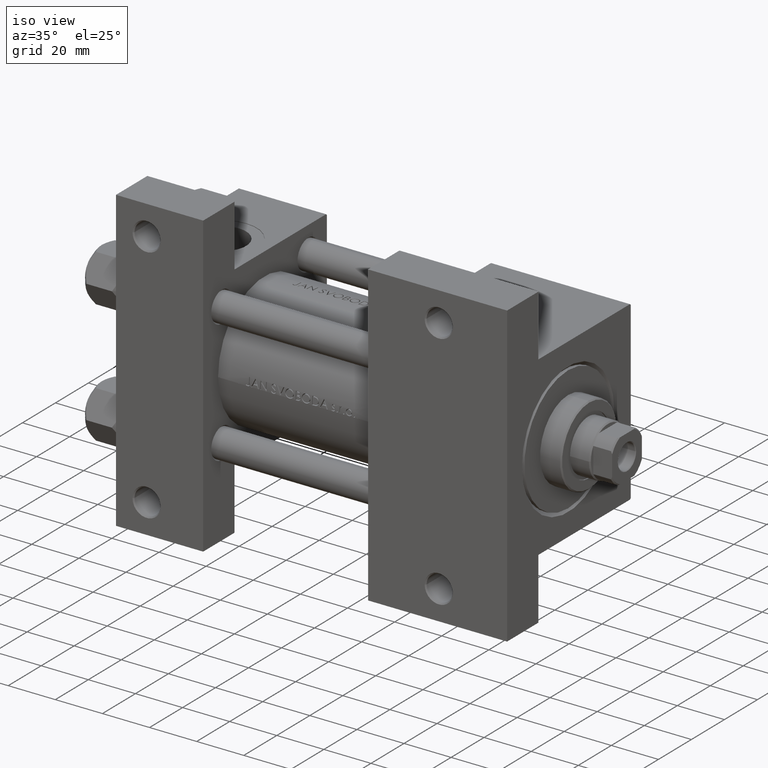
[diagram: clean part render]
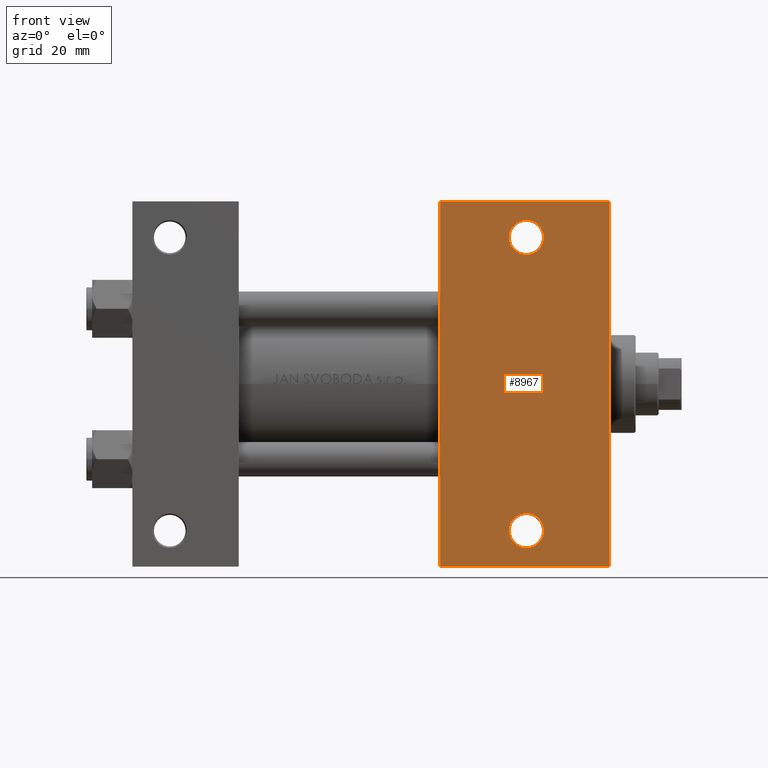
[diagram: tour spotlight — one face highlighted and labeled with its STEP entity id]
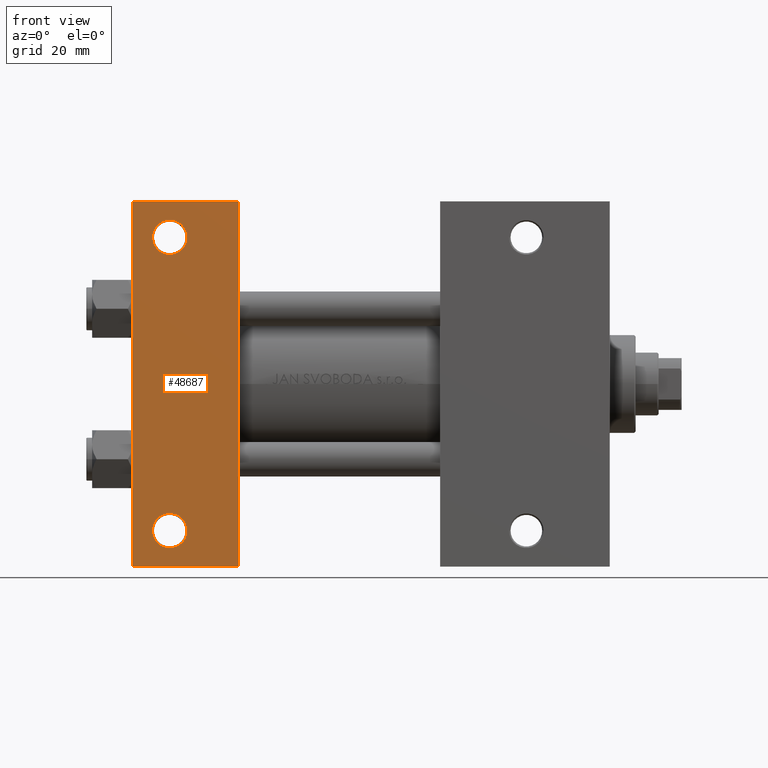
[diagram: tour spotlight — one face highlighted and labeled with its STEP entity id]
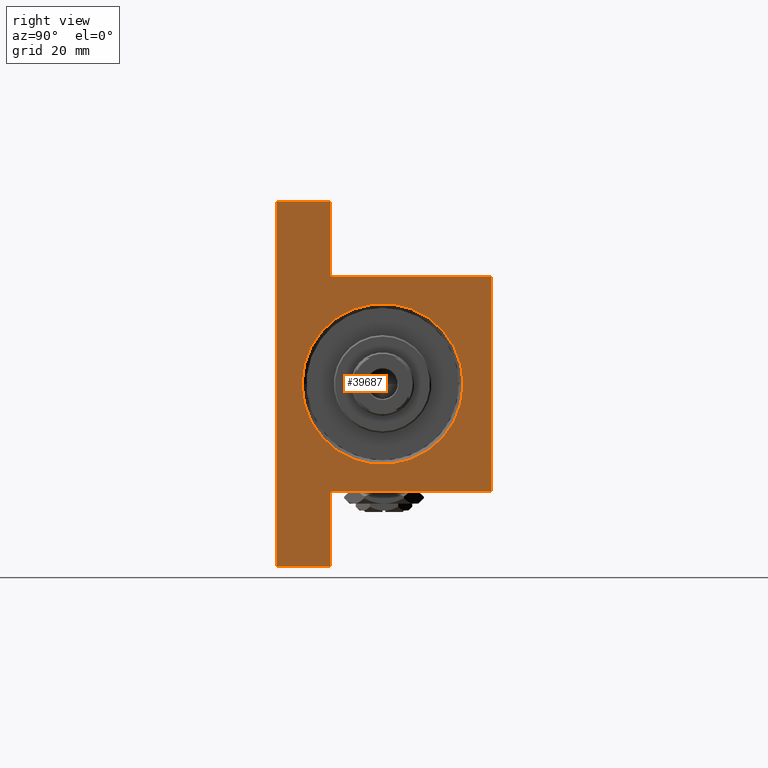
[diagram: tour spotlight — one face highlighted and labeled with its STEP entity id]
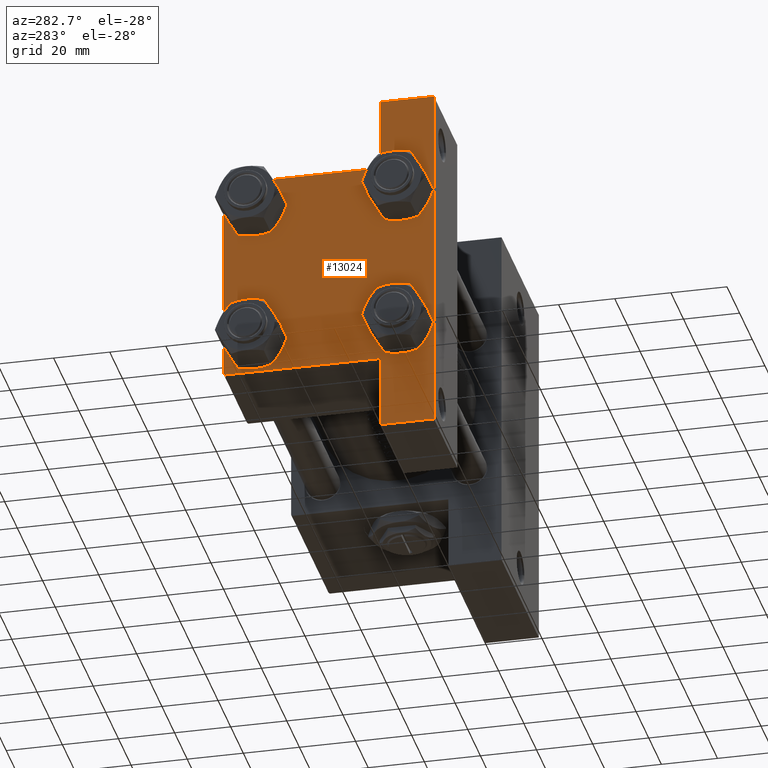
[diagram: tour spotlight — one face highlighted and labeled with its STEP entity id]
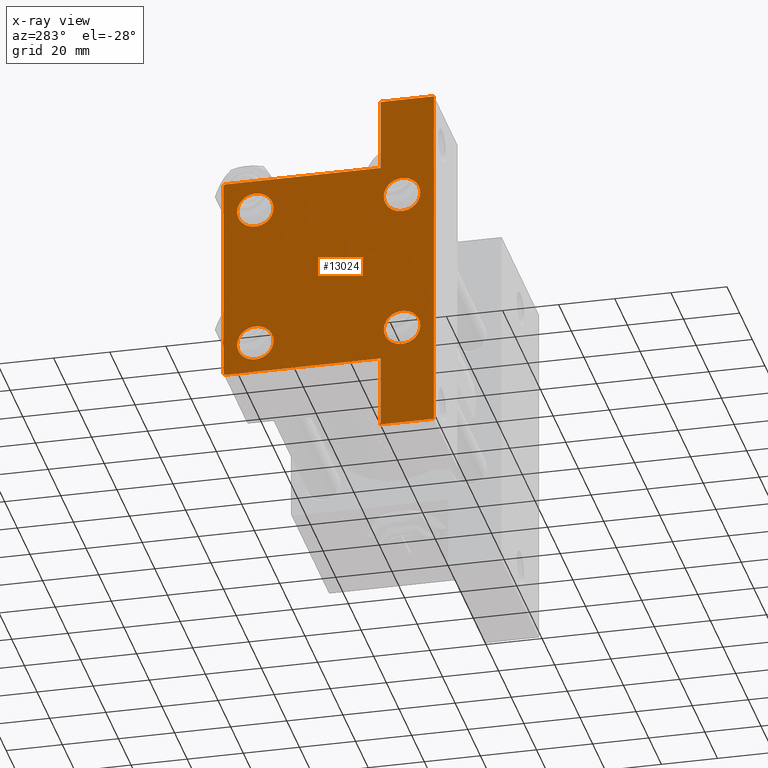
[diagram: x-ray of the same camera — body ghosted, this tour face saturated]
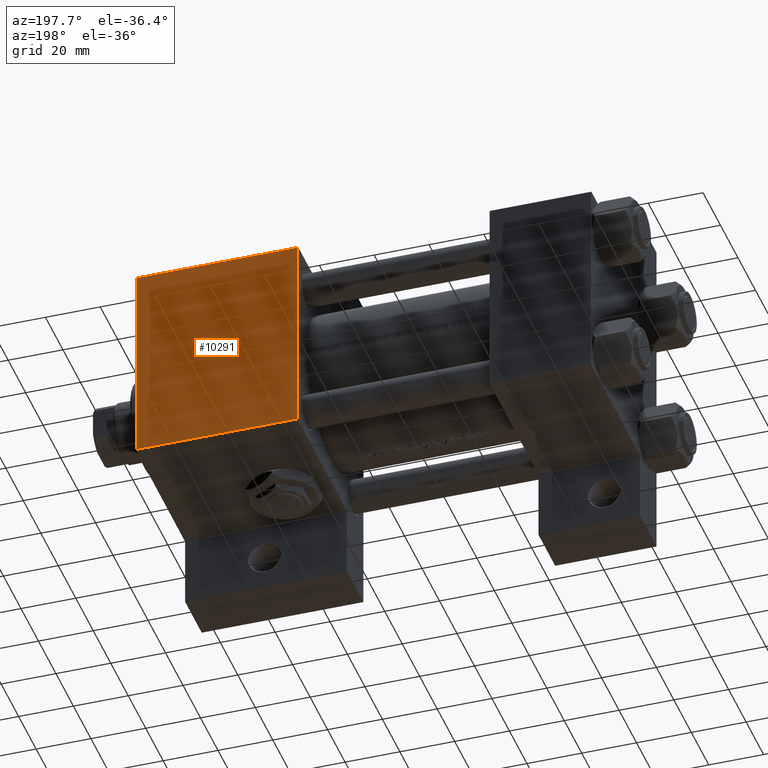
[diagram: tour spotlight — one face highlighted and labeled with its STEP entity id]
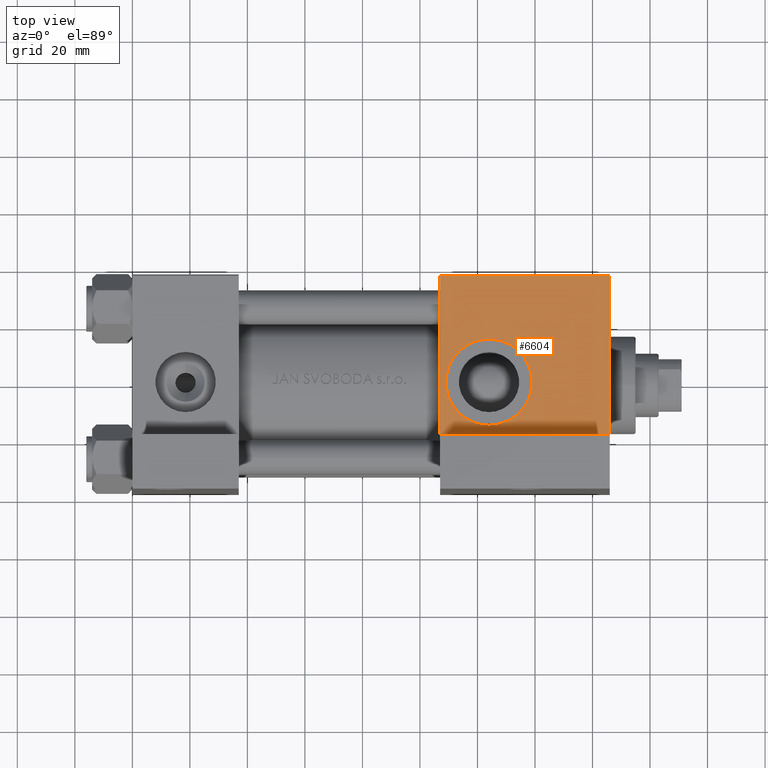
[diagram: tour spotlight — one face highlighted and labeled with its STEP entity id]
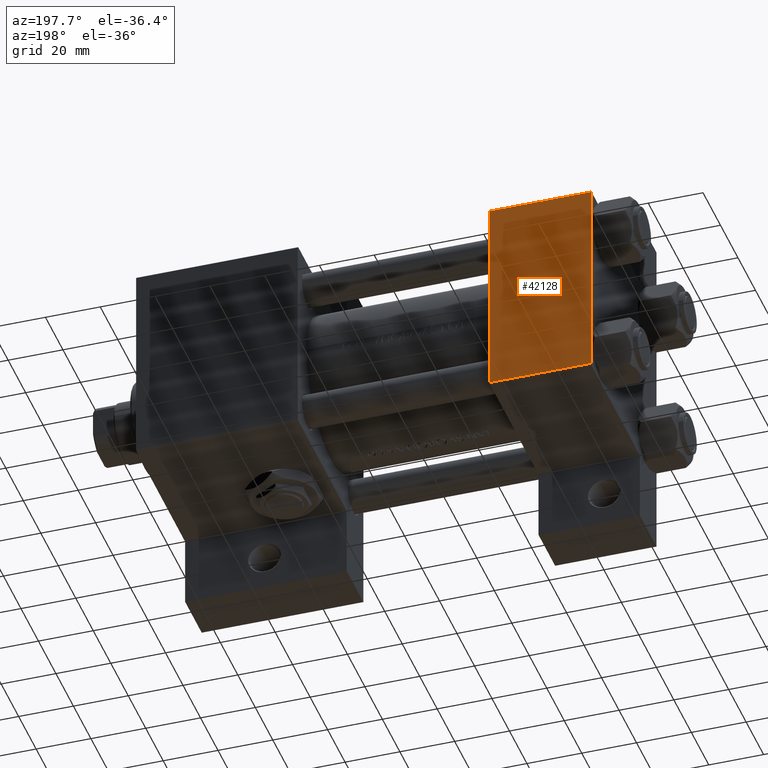
[diagram: tour spotlight — one face highlighted and labeled with its STEP entity id]
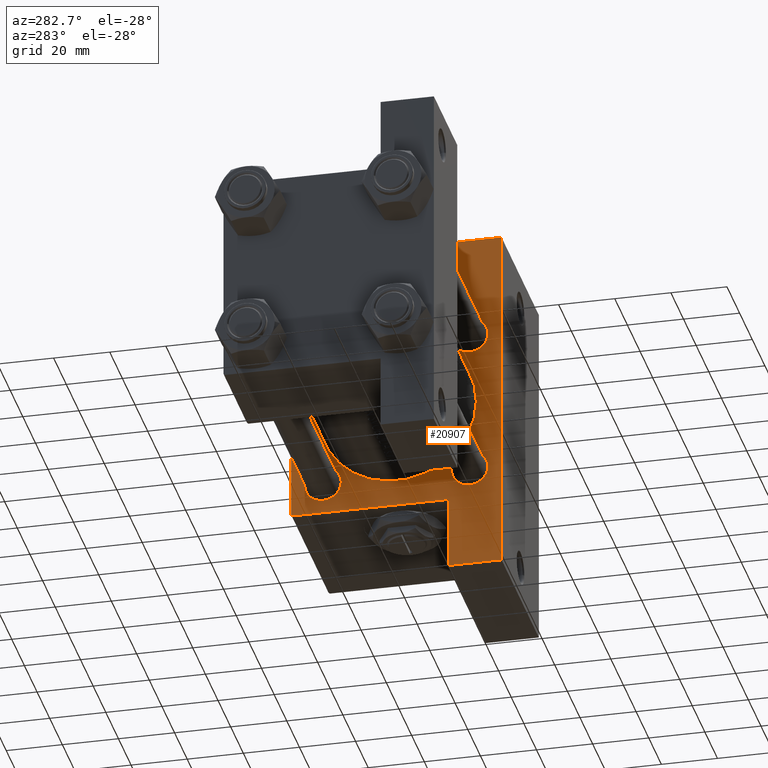
[diagram: tour spotlight — one face highlighted and labeled with its STEP entity id]
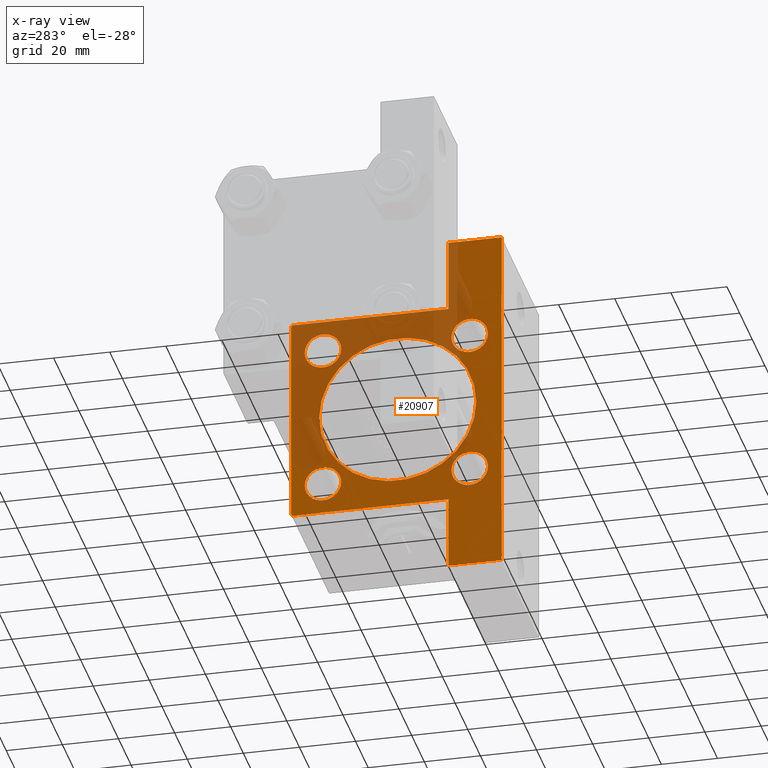
[diagram: x-ray of the same camera — body ghosted, this tour face saturated]
A machine part: a face-by-face anatomy tour. The part has 1134 B-rep faces; the first image is the clean iso view, then the 8 largest visible faces are spotlighted one at a time (largest first), each with its STEP entity span.

Face 1 — front view, entity #8967. In plain terms, the highlighted planar face has unit normal (0, -1, 0).
Definition (entity closure, byte-faithful):
#329 = CARTESIAN_POINT ( 'NONE',  ( 166.0000000000000000, 37.50000000000000000, -37.50000000000000000 ) ) ;
#578 = CARTESIAN_POINT ( 'NONE',  ( 166.0000000000000000, 63.50000000000000000, -37.50000000000000000 ) ) ;
#803 = FACE_OUTER_BOUND ( 'NONE', #46786, .T. ) ;
#838 = CARTESIAN_POINT ( 'NONE',  ( 107.0000000000000000, -63.50000000000000000, -37.50000000000000000 ) ) ;
#895 = ORIENTED_EDGE ( 'NONE', *, *, #47544, .T. ) ;
#1045 = DIRECTION ( 'NONE',  ( -1.000000000000000000, 0.000000000000000000, -0.000000000000000000 ) ) ;
#1500 = LINE ( 'NONE', #329, #27432 ) ;
#1536 = FACE_BOUND ( 'NONE', #19638, .T. ) ;
#3195 = CARTESIAN_POINT ( 'NONE',  ( 107.0000000000000142, 37.50000000000000000, -37.50000000000000000 ) ) ;
#4487 = VERTEX_POINT ( 'NONE', #578 ) ;
#4772 = CARTESIAN_POINT ( 'NONE',  ( 107.0000000000000142, 63.50000000000000000, -37.50000000000000000 ) ) ;
#5000 = DIRECTION ( 'NONE',  ( 0.000000000000000000, -1.000000000000000000, 0.000000000000000000 ) ) ;
#5194 = VERTEX_POINT ( 'NONE', #35319 ) ;
#5522 = DIRECTION ( 'NONE',  ( 0.000000000000000000, 0.000000000000000000, -1.000000000000000000 ) ) ;
#6089 = VECTOR ( 'NONE', #16033, 1000.000000000000000 ) ;
#6775 = EDGE_CURVE ( 'NONE', #43135, #5194, #42371, .T. ) ;
#7283 = EDGE_CURVE ( 'NONE', #9123, #4487, #38899, .T. ) ;
#8275 = CARTESIAN_POINT ( 'NONE',  ( 131.0004999999999882, -51.00000000000000711, -37.50000000000000000 ) ) ;
#8397 = CIRCLE ( 'NONE', #9180, 5.999500000000018929 ) ;
#8724 = DIRECTION ( 'NONE',  ( -0.000000000000000000, -0.000000000000000000, 1.000000000000000000 ) ) ;
#8967 = ADVANCED_FACE ( 'NONE', ( #1536, #35422, #803 ), #46366, .T. ) ;
#9123 = VERTEX_POINT ( 'NONE', #42083 ) ;
#9180 = AXIS2_PLACEMENT_3D ( 'NONE', #14386, #29561, #46474 ) ;
#11005 = CARTESIAN_POINT ( 'NONE',  ( 137.0000000000000000, 51.00000000000000000, -37.50000000000000000 ) ) ;
#11235 = DIRECTION ( 'NONE',  ( -0.000000000000000000, -0.000000000000000000, 1.000000000000000000 ) ) ;
#12204 = ORIENTED_EDGE ( 'NONE', *, *, #45677, .T. ) ;
#12226 = VERTEX_POINT ( 'NONE', #43057 ) ;
#13088 = CARTESIAN_POINT ( 'NONE',  ( 165.9999999999999716, -63.50000000000002842, -37.50000000000000000 ) ) ;
#14386 = CARTESIAN_POINT ( 'NONE',  ( 137.0000000000000000, -51.00000000000000711, -37.50000000000000000 ) ) ;
#14406 = LINE ( 'NONE', #3195, #43375 ) ;
#16033 = DIRECTION ( 'NONE',  ( -1.000000000000000000, 4.704334850106596780E-16, -0.000000000000000000 ) ) ;
#19638 = EDGE_LOOP ( 'NONE', ( #36996, #46144 ) ) ;
#19760 = LINE ( 'NONE', #838, #6089 ) ;
#19921 = DIRECTION ( 'NONE',  ( -1.000000000000000000, 0.000000000000000000, 0.000000000000000000 ) ) ;
#19977 = CARTESIAN_POINT ( 'NONE',  ( 166.0000000000000000, 37.50000000000000000, -37.50000000000000000 ) ) ;
#21538 = AXIS2_PLACEMENT_3D ( 'NONE', #11005, #23427, #27162 ) ;
#21647 = CIRCLE ( 'NONE', #21538, 5.999500000000018929 ) ;
#23427 = DIRECTION ( 'NONE',  ( -0.000000000000000000, -0.000000000000000000, 1.000000000000000000 ) ) ;
#24944 = AXIS2_PLACEMENT_3D ( 'NONE', #19977, #5522, #1045 ) ;
#25843 = DIRECTION ( 'NONE',  ( 0.000000000000000000, -1.000000000000000000, 0.000000000000000000 ) ) ;
#26397 = DIRECTION ( 'NONE',  ( -1.000000000000000000, 0.000000000000000000, 0.000000000000000000 ) ) ;
#27162 = DIRECTION ( 'NONE',  ( -1.000000000000000000, 0.000000000000000000, 0.000000000000000000 ) ) ;
#27419 = DIRECTION ( 'NONE',  ( 1.000000000000000000, 0.000000000000000000, 0.000000000000000000 ) ) ;
#27432 = VECTOR ( 'NONE', #5000, 1000.000000000000000 ) ;
#29064 = AXIS2_PLACEMENT_3D ( 'NONE', #42828, #8724, #19921 ) ;
#29561 = DIRECTION ( 'NONE',  ( -0.000000000000000000, -0.000000000000000000, 1.000000000000000000 ) ) ;
#30133 = CARTESIAN_POINT ( 'NONE',  ( 137.0000000000000000, 51.00000000000000000, -37.50000000000000000 ) ) ;
#31186 = ORIENTED_EDGE ( 'NONE', *, *, #46041, .F. ) ;
#31532 = CARTESIAN_POINT ( 'NONE',  ( 131.0004999999999882, 51.00000000000000000, -37.50000000000000000 ) ) ;
#32134 = CARTESIAN_POINT ( 'NONE',  ( 142.9995000000000402, -51.00000000000000711, -37.50000000000000000 ) ) ;
#34451 = EDGE_CURVE ( 'NONE', #5194, #43135, #21647, .T. ) ;
#34693 = VERTEX_POINT ( 'NONE', #32134 ) ;
#35271 = ORIENTED_EDGE ( 'NONE', *, *, #45204, .T. ) ;
#35319 = CARTESIAN_POINT ( 'NONE',  ( 142.9995000000000402, 51.00000000000000000, -37.50000000000000000 ) ) ;
#35422 = FACE_BOUND ( 'NONE', #36424, .T. ) ;
#36424 = EDGE_LOOP ( 'NONE', ( #35271, #12204 ) ) ;
#36829 = VECTOR ( 'NONE', #27419, 1000.000000000000000 ) ;
#36996 = ORIENTED_EDGE ( 'NONE', *, *, #6775, .T. ) ;
#38899 = LINE ( 'NONE', #4772, #36829 ) ;
#39995 = AXIS2_PLACEMENT_3D ( 'NONE', #30133, #11235, #26397 ) ;
#42083 = CARTESIAN_POINT ( 'NONE',  ( 107.0000000000000142, 63.50000000000000000, -37.50000000000000000 ) ) ;
#42253 = ORIENTED_EDGE ( 'NONE', *, *, #48352, .T. ) ;
#42371 = CIRCLE ( 'NONE', #39995, 5.999500000000018929 ) ;
#42417 = ORIENTED_EDGE ( 'NONE', *, *, #7283, .T. ) ;
#42828 = CARTESIAN_POINT ( 'NONE',  ( 137.0000000000000000, -51.00000000000000711, -37.50000000000000000 ) ) ;
#43057 = CARTESIAN_POINT ( 'NONE',  ( 107.0000000000000000, -63.50000000000000000, -37.50000000000000000 ) ) ;
#43135 = VERTEX_POINT ( 'NONE', #31532 ) ;
#43375 = VECTOR ( 'NONE', #25843, 1000.000000000000000 ) ;
#45204 = EDGE_CURVE ( 'NONE', #48537, #34693, #8397, .T. ) ;
#45677 = EDGE_CURVE ( 'NONE', #34693, #48537, #48953, .T. ) ;
#46041 = EDGE_CURVE ( 'NONE', #9123, #12226, #14406, .T. ) ;
#46144 = ORIENTED_EDGE ( 'NONE', *, *, #34451, .T. ) ;
#46366 = PLANE ( 'NONE',  #24944 ) ;
#46474 = DIRECTION ( 'NONE',  ( -1.000000000000000000, 0.000000000000000000, 0.000000000000000000 ) ) ;
#46786 = EDGE_LOOP ( 'NONE', ( #31186, #42417, #895, #42253 ) ) ;
#47544 = EDGE_CURVE ( 'NONE', #4487, #48217, #1500, .T. ) ;
#48217 = VERTEX_POINT ( 'NONE', #13088 ) ;
#48352 = EDGE_CURVE ( 'NONE', #48217, #12226, #19760, .T. ) ;
#48537 = VERTEX_POINT ( 'NONE', #8275 ) ;
#48953 = CIRCLE ( 'NONE', #29064, 5.999500000000018929 ) ;

Face 2 — front view, entity #48687. In plain terms, the highlighted planar face has unit normal (0, -1, -0).
Definition (entity closure, byte-faithful):
#1197 = CARTESIAN_POINT ( 'NONE',  ( 12.99999999999999822, 50.99999999999999289, -37.50000000000000000 ) ) ;
#1292 = DIRECTION ( 'NONE',  ( 0.000000000000000000, 9.251858538542972814E-17, -1.000000000000000000 ) ) ;
#1591 = ORIENTED_EDGE ( 'NONE', *, *, #2439, .T. ) ;
#1994 = EDGE_LOOP ( 'NONE', ( #48390, #1591 ) ) ;
#2009 = FACE_BOUND ( 'NONE', #1994, .T. ) ;
#2439 = EDGE_CURVE ( 'NONE', #24974, #48304, #44514, .T. ) ;
#2875 = VECTOR ( 'NONE', #36426, 1000.000000000000000 ) ;
#3148 = CARTESIAN_POINT ( 'NONE',  ( 37.00000000000001421, 63.50000000000000000, -37.50000000000002132 ) ) ;
#4690 = DIRECTION ( 'NONE',  ( -0.000000000000000000, -9.251858538542972814E-17, 1.000000000000000000 ) ) ;
#5442 = VERTEX_POINT ( 'NONE', #3148 ) ;
#5674 = VERTEX_POINT ( 'NONE', #48178 ) ;
#6408 = VERTEX_POINT ( 'NONE', #47206 ) ;
#6830 = DIRECTION ( 'NONE',  ( 0.000000000000000000, -1.000000000000000000, -9.251858538542972814E-17 ) ) ;
#6864 = VECTOR ( 'NONE', #44728, 1000.000000000000000 ) ;
#7167 = VERTEX_POINT ( 'NONE', #41153 ) ;
#8820 = CARTESIAN_POINT ( 'NONE',  ( 7.000499999999979295, -51.00000000000001421, -37.50000000000000711 ) ) ;
#9303 = CARTESIAN_POINT ( 'NONE',  ( 0.000000000000000000, 37.49999999999999289, -37.50000000000000000 ) ) ;
#10347 = AXIS2_PLACEMENT_3D ( 'NONE', #48566, #15190, #49063 ) ;
#13210 = EDGE_CURVE ( 'NONE', #7167, #6408, #48747, .T. ) ;
#13515 = EDGE_CURVE ( 'NONE', #33365, #5674, #43365, .T. ) ;
#13685 = DIRECTION ( 'NONE',  ( 0.000000000000000000, 1.000000000000000000, 0.000000000000000000 ) ) ;
#15190 = DIRECTION ( 'NONE',  ( -0.000000000000000000, -9.251858538542972814E-17, 1.000000000000000000 ) ) ;
#16485 = DIRECTION ( 'NONE',  ( 0.000000000000000000, 1.000000000000000000, 9.251858538542972814E-17 ) ) ;
#16933 = DIRECTION ( 'NONE',  ( -0.000000000000000000, -9.251858538542972814E-17, 1.000000000000000000 ) ) ;
#16963 = PLANE ( 'NONE',  #31423 ) ;
#18035 = CARTESIAN_POINT ( 'NONE',  ( 37.00000000000000000, 37.49999999999999289, -37.50000000000000000 ) ) ;
#18582 = LINE ( 'NONE', #37278, #6864 ) ;
#18737 = EDGE_LOOP ( 'NONE', ( #34398, #20253, #21221, #41784 ) ) ;
#18804 = DIRECTION ( 'NONE',  ( 0.000000000000000000, 1.000000000000000000, 0.000000000000000000 ) ) ;
#19167 = AXIS2_PLACEMENT_3D ( 'NONE', #47559, #16933, #13685 ) ;
#20253 = ORIENTED_EDGE ( 'NONE', *, *, #47955, .T. ) ;
#20699 = FACE_BOUND ( 'NONE', #47058, .T. ) ;
#21221 = ORIENTED_EDGE ( 'NONE', *, *, #39561, .T. ) ;
#23311 = AXIS2_PLACEMENT_3D ( 'NONE', #1197, #4690, #43039 ) ;
#24974 = VERTEX_POINT ( 'NONE', #47555 ) ;
#25535 = CIRCLE ( 'NONE', #19167, 5.999500000000018929 ) ;
#26024 = CARTESIAN_POINT ( 'NONE',  ( 12.99999999999999822, 50.99999999999999289, -37.50000000000000000 ) ) ;
#26230 = LINE ( 'NONE', #18035, #33658 ) ;
#26327 = CARTESIAN_POINT ( 'NONE',  ( 3.977209754999747208E-16, -63.50000000000000000, -37.49999999999999289 ) ) ;
#27727 = ORIENTED_EDGE ( 'NONE', *, *, #13515, .T. ) ;
#31423 = AXIS2_PLACEMENT_3D ( 'NONE', #47588, #1292, #16485 ) ;
#33264 = DIRECTION ( 'NONE',  ( -0.000000000000000000, -9.251858538542972814E-17, 1.000000000000000000 ) ) ;
#33365 = VERTEX_POINT ( 'NONE', #47376 ) ;
#33658 = VECTOR ( 'NONE', #6830, 1000.000000000000000 ) ;
#33731 = EDGE_CURVE ( 'NONE', #48304, #24974, #25535, .T. ) ;
#34398 = ORIENTED_EDGE ( 'NONE', *, *, #48434, .F. ) ;
#36232 = AXIS2_PLACEMENT_3D ( 'NONE', #26024, #33264, #18804 ) ;
#36426 = DIRECTION ( 'NONE',  ( 0.000000000000000000, -1.000000000000000000, -9.251858538542972814E-17 ) ) ;
#37278 = CARTESIAN_POINT ( 'NONE',  ( 1.595073532467135441E-14, 63.50000000000000000, -37.50000000000002132 ) ) ;
#39444 = LINE ( 'NONE', #9303, #2875 ) ;
#39561 = EDGE_CURVE ( 'NONE', #5442, #7167, #26230, .T. ) ;
#40279 = EDGE_CURVE ( 'NONE', #5674, #33365, #47960, .T. ) ;
#40988 = VECTOR ( 'NONE', #45248, 1000.000000000000000 ) ;
#41153 = CARTESIAN_POINT ( 'NONE',  ( 37.00000000000000000, -63.50000000000000000, -37.49999999999999289 ) ) ;
#41784 = ORIENTED_EDGE ( 'NONE', *, *, #13210, .T. ) ;
#43039 = DIRECTION ( 'NONE',  ( 0.000000000000000000, 1.000000000000000000, 0.000000000000000000 ) ) ;
#43365 = CIRCLE ( 'NONE', #36232, 5.999499999999962974 ) ;
#43859 = ORIENTED_EDGE ( 'NONE', *, *, #40279, .T. ) ;
#44514 = CIRCLE ( 'NONE', #10347, 5.999500000000018929 ) ;
#44728 = DIRECTION ( 'NONE',  ( 1.000000000000000000, 0.000000000000000000, 0.000000000000000000 ) ) ;
#45248 = DIRECTION ( 'NONE',  ( -1.000000000000000000, -0.000000000000000000, -0.000000000000000000 ) ) ;
#46079 = VERTEX_POINT ( 'NONE', #49258 ) ;
#47058 = EDGE_LOOP ( 'NONE', ( #43859, #27727 ) ) ;
#47099 = FACE_OUTER_BOUND ( 'NONE', #18737, .T. ) ;
#47206 = CARTESIAN_POINT ( 'NONE',  ( 3.977209754999747208E-16, -63.50000000000000000, -37.49999999999999289 ) ) ;
#47376 = CARTESIAN_POINT ( 'NONE',  ( 18.99949999999996209, 50.99999999999999289, -37.50000000000000000 ) ) ;
#47555 = CARTESIAN_POINT ( 'NONE',  ( 18.99950000000001538, -51.00000000000001421, -37.50000000000000711 ) ) ;
#47559 = CARTESIAN_POINT ( 'NONE',  ( 12.99999999999999822, -51.00000000000001421, -37.50000000000000711 ) ) ;
#47588 = CARTESIAN_POINT ( 'NONE',  ( 37.00000000000000000, 37.49999999999999289, -37.50000000000000000 ) ) ;
#47955 = EDGE_CURVE ( 'NONE', #46079, #5442, #18582, .T. ) ;
#47960 = CIRCLE ( 'NONE', #23311, 5.999499999999962974 ) ;
#48178 = CARTESIAN_POINT ( 'NONE',  ( 7.000500000000034362, 50.99999999999999289, -37.50000000000000000 ) ) ;
#48304 = VERTEX_POINT ( 'NONE', #8820 ) ;
#48390 = ORIENTED_EDGE ( 'NONE', *, *, #33731, .T. ) ;
#48434 = EDGE_CURVE ( 'NONE', #46079, #6408, #39444, .T. ) ;
#48566 = CARTESIAN_POINT ( 'NONE',  ( 12.99999999999999822, -51.00000000000001421, -37.50000000000000711 ) ) ;
#48687 = ADVANCED_FACE ( 'NONE', ( #20699, #2009, #47099 ), #16963, .T. ) ;
#48747 = LINE ( 'NONE', #26327, #40988 ) ;
#49063 = DIRECTION ( 'NONE',  ( 0.000000000000000000, 1.000000000000000000, 0.000000000000000000 ) ) ;
#49258 = CARTESIAN_POINT ( 'NONE',  ( 1.595073532467135441E-14, 63.50000000000000000, -37.50000000000002132 ) ) ;

Face 3 — right view, entity #39687. In plain terms, the highlighted planar face has unit normal (-1, 0, 0).
Definition (entity closure, byte-faithful):
#238 = CARTESIAN_POINT ( 'NONE',  ( 166.0000000000000000, 63.50000000000000000, -18.50000000000000000 ) ) ;
#329 = CARTESIAN_POINT ( 'NONE',  ( 166.0000000000000000, 37.50000000000000000, -37.50000000000000000 ) ) ;
#578 = CARTESIAN_POINT ( 'NONE',  ( 166.0000000000000000, 63.50000000000000000, -37.50000000000000000 ) ) ;
#710 = EDGE_CURVE ( 'NONE', #35704, #41077, #21536, .T. ) ;
#1500 = LINE ( 'NONE', #329, #27432 ) ;
#2370 = CIRCLE ( 'NONE', #31008, 27.99999999999999645 ) ;
#2635 = EDGE_CURVE ( 'NONE', #5628, #37907, #43544, .T. ) ;
#4213 = DIRECTION ( 'NONE',  ( 0.000000000000000000, -1.000000000000000000, -1.850371707708594316E-16 ) ) ;
#4295 = CARTESIAN_POINT ( 'NONE',  ( 166.0000000000000000, -37.50000000000000000, 36.99999999999992184 ) ) ;
#4487 = VERTEX_POINT ( 'NONE', #578 ) ;
#4819 = FACE_OUTER_BOUND ( 'NONE', #36285, .T. ) ;
#5000 = DIRECTION ( 'NONE',  ( 0.000000000000000000, -1.000000000000000000, 0.000000000000000000 ) ) ;
#5084 = DIRECTION ( 'NONE',  ( 0.000000000000000000, -9.251858538542972814E-17, -1.000000000000000000 ) ) ;
#5628 = VERTEX_POINT ( 'NONE', #43217 ) ;
#5665 = ORIENTED_EDGE ( 'NONE', *, *, #7780, .T. ) ;
#6311 = CARTESIAN_POINT ( 'NONE',  ( 165.9999999999999716, 37.49999999999997868, -18.50000000000000000 ) ) ;
#6942 = EDGE_LOOP ( 'NONE', ( #15278, #27542 ) ) ;
#7073 = ORIENTED_EDGE ( 'NONE', *, *, #710, .T. ) ;
#7467 = VECTOR ( 'NONE', #10973, 1000.000000000000000 ) ;
#7780 = EDGE_CURVE ( 'NONE', #37907, #35704, #34983, .T. ) ;
#8285 = EDGE_CURVE ( 'NONE', #35267, #5628, #31846, .T. ) ;
#9151 = EDGE_CURVE ( 'NONE', #9952, #29887, #18674, .T. ) ;
#9199 = EDGE_CURVE ( 'NONE', #41077, #48217, #46798, .T. ) ;
#9251 = CARTESIAN_POINT ( 'NONE',  ( 166.0000000000000000, -37.50000000000000711, -18.50000000000000355 ) ) ;
#9532 = ORIENTED_EDGE ( 'NONE', *, *, #9199, .T. ) ;
#9716 = VECTOR ( 'NONE', #12083, 1000.000000000000000 ) ;
#9952 = VERTEX_POINT ( 'NONE', #15359 ) ;
#10836 = DIRECTION ( 'NONE',  ( -0.000000000000000000, -1.000000000000000000, -0.000000000000000000 ) ) ;
#10973 = DIRECTION ( 'NONE',  ( -1.067522139062649685E-15, -1.000000000000000000, 0.000000000000000000 ) ) ;
#12030 = CARTESIAN_POINT ( 'NONE',  ( 166.0000000000000000, 0.000000000000000000, -28.49999999999999645 ) ) ;
#12083 = DIRECTION ( 'NONE',  ( 0.000000000000000000, -0.7071067811865672237, 0.7071067811865279218 ) ) ;
#12295 = PLANE ( 'NONE',  #24908 ) ;
#12693 = CARTESIAN_POINT ( 'NONE',  ( 165.9999999999999716, -63.50000000000002842, -18.50000000000000000 ) ) ;
#13088 = CARTESIAN_POINT ( 'NONE',  ( 165.9999999999999716, -63.50000000000002842, -37.50000000000000000 ) ) ;
#14902 = CARTESIAN_POINT ( 'NONE',  ( 166.0000000000000000, 0.000000000000000000, -0.5000000000000004441 ) ) ;
#15090 = VECTOR ( 'NONE', #35837, 1000.000000000000114 ) ;
#15278 = ORIENTED_EDGE ( 'NONE', *, *, #24296, .T. ) ;
#15359 = CARTESIAN_POINT ( 'NONE',  ( 166.0000000000000000, 63.50000000000000000, -18.50000000000000000 ) ) ;
#16025 = FACE_BOUND ( 'NONE', #6942, .T. ) ;
#17433 = VECTOR ( 'NONE', #41134, 1000.000000000000000 ) ;
#18674 = LINE ( 'NONE', #238, #7467 ) ;
#18928 = CARTESIAN_POINT ( 'NONE',  ( 166.0000000000000000, 0.000000000000000000, -0.5000000000000004441 ) ) ;
#18960 = CIRCLE ( 'NONE', #34080, 27.99999999999999645 ) ;
#19827 = VECTOR ( 'NONE', #10836, 1000.000000000000000 ) ;
#20672 = VECTOR ( 'NONE', #30131, 1000.000000000000000 ) ;
#21536 = LINE ( 'NONE', #36494, #19827 ) ;
#21706 = VECTOR ( 'NONE', #5084, 1000.000000000000000 ) ;
#22986 = DIRECTION ( 'NONE',  ( 0.000000000000000000, 0.000000000000000000, 1.000000000000000000 ) ) ;
#24296 = EDGE_CURVE ( 'NONE', #26734, #35763, #18960, .T. ) ;
#24908 = AXIS2_PLACEMENT_3D ( 'NONE', #31201, #46393, #22986 ) ;
#25643 = CARTESIAN_POINT ( 'NONE',  ( 166.0000000000000000, 3.429011037612588881E-15, 27.49999999999999645 ) ) ;
#26163 = LINE ( 'NONE', #34145, #17433 ) ;
#26734 = VERTEX_POINT ( 'NONE', #12030 ) ;
#26886 = DIRECTION ( 'NONE',  ( -1.000000000000000000, -0.000000000000000000, 0.000000000000000000 ) ) ;
#26954 = ORIENTED_EDGE ( 'NONE', *, *, #31336, .F. ) ;
#27039 = EDGE_CURVE ( 'NONE', #35763, #26734, #2370, .T. ) ;
#27432 = VECTOR ( 'NONE', #5000, 1000.000000000000000 ) ;
#27542 = ORIENTED_EDGE ( 'NONE', *, *, #27039, .T. ) ;
#27748 = LINE ( 'NONE', #42951, #9716 ) ;
#28710 = EDGE_CURVE ( 'NONE', #9952, #4487, #26163, .T. ) ;
#28824 = CARTESIAN_POINT ( 'NONE',  ( 166.0000000000000000, -37.50000000000000000, 36.99999999999992184 ) ) ;
#29887 = VERTEX_POINT ( 'NONE', #6311 ) ;
#30078 = DIRECTION ( 'NONE',  ( -1.000000000000000000, -0.000000000000000000, 0.000000000000000000 ) ) ;
#30131 = DIRECTION ( 'NONE',  ( 0.000000000000000000, 0.000000000000000000, -1.000000000000000000 ) ) ;
#31008 = AXIS2_PLACEMENT_3D ( 'NONE', #18928, #26886, #38112 ) ;
#31201 = CARTESIAN_POINT ( 'NONE',  ( 166.0000000000000000, 0.000000000000000000, 0.000000000000000000 ) ) ;
#31336 = EDGE_CURVE ( 'NONE', #42283, #29887, #41118, .T. ) ;
#31846 = LINE ( 'NONE', #46542, #44770 ) ;
#32201 = CARTESIAN_POINT ( 'NONE',  ( 166.0000000000000000, 37.50000000000000000, 36.99999999999999289 ) ) ;
#32808 = ORIENTED_EDGE ( 'NONE', *, *, #47544, .F. ) ;
#33598 = ORIENTED_EDGE ( 'NONE', *, *, #8285, .T. ) ;
#34080 = AXIS2_PLACEMENT_3D ( 'NONE', #14902, #30078, #45267 ) ;
#34130 = CARTESIAN_POINT ( 'NONE',  ( 166.0000000000000000, 37.50000000000000000, 37.49999999999999289 ) ) ;
#34145 = CARTESIAN_POINT ( 'NONE',  ( 166.0000000000000000, 63.50000000000000000, -18.50000000000000000 ) ) ;
#34983 = LINE ( 'NONE', #39211, #21706 ) ;
#35267 = VERTEX_POINT ( 'NONE', #35706 ) ;
#35308 = VECTOR ( 'NONE', #43070, 1000.000000000000000 ) ;
#35704 = VERTEX_POINT ( 'NONE', #9251 ) ;
#35706 = CARTESIAN_POINT ( 'NONE',  ( 166.0000000000000000, 36.99999999999997158, 37.49999999999999289 ) ) ;
#35763 = VERTEX_POINT ( 'NONE', #25643 ) ;
#35837 = DIRECTION ( 'NONE',  ( -0.000000000000000000, -0.7071067811865474617, -0.7071067811865474617 ) ) ;
#36285 = EDGE_LOOP ( 'NONE', ( #26954, #44994, #33598, #42055, #5665, #7073, #9532, #32808, #42730, #41513 ) ) ;
#36494 = CARTESIAN_POINT ( 'NONE',  ( 165.9999999999999716, -63.50000000000002842, -18.50000000000000000 ) ) ;
#37239 = EDGE_CURVE ( 'NONE', #42283, #35267, #27748, .T. ) ;
#37907 = VERTEX_POINT ( 'NONE', #4295 ) ;
#38112 = DIRECTION ( 'NONE',  ( 0.000000000000000000, 0.000000000000000000, 1.000000000000000000 ) ) ;
#39211 = CARTESIAN_POINT ( 'NONE',  ( 166.0000000000000000, -37.50000000000000000, 37.49999999999997868 ) ) ;
#39687 = ADVANCED_FACE ( 'NONE', ( #16025, #4819 ), #12295, .F. ) ;
#41077 = VERTEX_POINT ( 'NONE', #41984 ) ;
#41118 = LINE ( 'NONE', #34130, #20672 ) ;
#41134 = DIRECTION ( 'NONE',  ( 0.000000000000000000, 0.000000000000000000, -1.000000000000000000 ) ) ;
#41513 = ORIENTED_EDGE ( 'NONE', *, *, #9151, .T. ) ;
#41984 = CARTESIAN_POINT ( 'NONE',  ( 165.9999999999999716, -63.50000000000002842, -18.50000000000000000 ) ) ;
#42055 = ORIENTED_EDGE ( 'NONE', *, *, #2635, .T. ) ;
#42283 = VERTEX_POINT ( 'NONE', #32201 ) ;
#42730 = ORIENTED_EDGE ( 'NONE', *, *, #28710, .F. ) ;
#42951 = CARTESIAN_POINT ( 'NONE',  ( 166.0000000000000000, 36.99999999999997158, 37.49999999999999289 ) ) ;
#43070 = DIRECTION ( 'NONE',  ( 0.000000000000000000, 0.000000000000000000, -1.000000000000000000 ) ) ;
#43217 = CARTESIAN_POINT ( 'NONE',  ( 166.0000000000000000, -36.99999999999994316, 37.49999999999997868 ) ) ;
#43544 = LINE ( 'NONE', #28824, #15090 ) ;
#44770 = VECTOR ( 'NONE', #4213, 1000.000000000000000 ) ;
#44994 = ORIENTED_EDGE ( 'NONE', *, *, #37239, .T. ) ;
#45267 = DIRECTION ( 'NONE',  ( 0.000000000000000000, 0.000000000000000000, 1.000000000000000000 ) ) ;
#46393 = DIRECTION ( 'NONE',  ( -1.000000000000000000, -0.000000000000000000, 0.000000000000000000 ) ) ;
#46542 = CARTESIAN_POINT ( 'NONE',  ( 166.0000000000000000, 37.50000000000000000, 37.49999999999999289 ) ) ;
#46798 = LINE ( 'NONE', #12693, #35308 ) ;
#47544 = EDGE_CURVE ( 'NONE', #4487, #48217, #1500, .T. ) ;
#48217 = VERTEX_POINT ( 'NONE', #13088 ) ;

Face 4 — auxiliary view, entity #13024. An x-ray twin of the same camera follows (body ghosted, this face saturated) — the face is partly hidden behind the body. In plain terms, the highlighted planar face has unit normal (-1, 0, -0).
Definition (entity closure, byte-faithful):
#489 = FACE_BOUND ( 'NONE', #45843, .T. ) ;
#733 = CARTESIAN_POINT ( 'NONE',  ( 0.000000000000000000, 0.000000000000000000, 0.000000000000000000 ) ) ;
#917 = ORIENTED_EDGE ( 'NONE', *, *, #12620, .T. ) ;
#992 = CARTESIAN_POINT ( 'NONE',  ( 1.595073532467135441E-14, 63.50000000000001421, 26.72167621838005047 ) ) ;
#1240 = VECTOR ( 'NONE', #35912, 1000.000000000000000 ) ;
#1506 = ORIENTED_EDGE ( 'NONE', *, *, #2446, .F. ) ;
#1565 = CARTESIAN_POINT ( 'NONE',  ( 3.977209754999747208E-16, -63.49999999999998579, 26.72167621838007889 ) ) ;
#1750 = VERTEX_POINT ( 'NONE', #33252 ) ;
#1988 = CIRCLE ( 'NONE', #13121, 6.500000000000015987 ) ;
#2446 = EDGE_CURVE ( 'NONE', #13805, #26116, #29631, .T. ) ;
#2875 = VECTOR ( 'NONE', #36426, 1000.000000000000000 ) ;
#2927 = CARTESIAN_POINT ( 'NONE',  ( 0.000000000000000000, 26.14999999999999858, 26.15000000000000213 ) ) ;
#4224 = ORIENTED_EDGE ( 'NONE', *, *, #24162, .T. ) ;
#4352 = DIRECTION ( 'NONE',  ( 1.000000000000000000, -0.000000000000000000, 0.000000000000000000 ) ) ;
#4470 = FACE_OUTER_BOUND ( 'NONE', #12880, .T. ) ;
#4476 = VECTOR ( 'NONE', #47991, 1000.000000000000000 ) ;
#4737 = VERTEX_POINT ( 'NONE', #15457 ) ;
#5187 = ORIENTED_EDGE ( 'NONE', *, *, #13629, .T. ) ;
#5849 = EDGE_CURVE ( 'NONE', #18301, #4737, #23489, .T. ) ;
#5954 = CARTESIAN_POINT ( 'NONE',  ( 0.000000000000000000, 26.14999999999999858, 32.65000000000002700 ) ) ;
#6408 = VERTEX_POINT ( 'NONE', #47206 ) ;
#6445 = DIRECTION ( 'NONE',  ( 0.000000000000000000, 0.000000000000000000, 1.000000000000000000 ) ) ;
#6647 = CIRCLE ( 'NONE', #26499, 6.500000000000015987 ) ;
#6968 = VERTEX_POINT ( 'NONE', #24246 ) ;
#7027 = CARTESIAN_POINT ( 'NONE',  ( 0.000000000000000000, 26.14999999999999858, -26.15000000000000213 ) ) ;
#7969 = DIRECTION ( 'NONE',  ( -0.000000000000000000, 0.000000000000000000, 1.000000000000000000 ) ) ;
#8454 = AXIS2_PLACEMENT_3D ( 'NONE', #12573, #31728, #16794 ) ;
#8548 = VERTEX_POINT ( 'NONE', #11400 ) ;
#8559 = LINE ( 'NONE', #1565, #11080 ) ;
#8713 = FACE_BOUND ( 'NONE', #49281, .T. ) ;
#8823 = EDGE_CURVE ( 'NONE', #30585, #6968, #6647, .T. ) ;
#9076 = CIRCLE ( 'NONE', #13046, 6.500000000000023093 ) ;
#9143 = CIRCLE ( 'NONE', #22659, 6.500000000000023093 ) ;
#9303 = CARTESIAN_POINT ( 'NONE',  ( 0.000000000000000000, 37.49999999999999289, -37.50000000000000000 ) ) ;
#9373 = EDGE_CURVE ( 'NONE', #18148, #19288, #44842, .T. ) ;
#10056 = DIRECTION ( 'NONE',  ( 0.000000000000000000, 0.000000000000000000, 1.000000000000000000 ) ) ;
#10531 = EDGE_CURVE ( 'NONE', #27912, #45918, #9076, .T. ) ;
#11080 = VECTOR ( 'NONE', #31198, 1000.000000000000000 ) ;
#11137 = VERTEX_POINT ( 'NONE', #44157 ) ;
#11400 = CARTESIAN_POINT ( 'NONE',  ( 0.000000000000000000, 37.49999999999999289, -18.49999999999999645 ) ) ;
#12154 = DIRECTION ( 'NONE',  ( -0.000000000000000000, 0.7071067811865474617, 0.7071067811865474617 ) ) ;
#12213 = LINE ( 'NONE', #992, #20567 ) ;
#12573 = CARTESIAN_POINT ( 'NONE',  ( 0.000000000000000000, -26.14999999999999147, -26.15000000000000924 ) ) ;
#12620 = EDGE_CURVE ( 'NONE', #45918, #27912, #9143, .T. ) ;
#12880 = EDGE_LOOP ( 'NONE', ( #39011, #32965, #18953, #33549, #29541, #29557, #4224, #46756, #38031, #1506 ) ) ;
#13024 = ADVANCED_FACE ( 'NONE', ( #8713, #34860, #489, #31106, #4470 ), #31353, .T. ) ;
#13029 = ORIENTED_EDGE ( 'NONE', *, *, #18773, .T. ) ;
#13046 = AXIS2_PLACEMENT_3D ( 'NONE', #2927, #45241, #21845 ) ;
#13121 = AXIS2_PLACEMENT_3D ( 'NONE', #7027, #22700, #22202 ) ;
#13629 = EDGE_CURVE ( 'NONE', #19288, #18148, #45773, .T. ) ;
#13631 = ORIENTED_EDGE ( 'NONE', *, *, #8823, .T. ) ;
#13687 = EDGE_CURVE ( 'NONE', #33597, #13805, #23275, .T. ) ;
#13805 = VERTEX_POINT ( 'NONE', #25425 ) ;
#14245 = LINE ( 'NONE', #47876, #41974 ) ;
#14506 = CARTESIAN_POINT ( 'NONE',  ( 0.000000000000000000, 26.14999999999999858, 26.15000000000000213 ) ) ;
#14632 = CARTESIAN_POINT ( 'NONE',  ( 0.000000000000000000, 26.14999999999999858, -32.65000000000001990 ) ) ;
#15457 = CARTESIAN_POINT ( 'NONE',  ( 0.000000000000000000, 37.49999999999999289, 37.00000000000000000 ) ) ;
#16398 = AXIS2_PLACEMENT_3D ( 'NONE', #16625, #31572, #47005 ) ;
#16625 = CARTESIAN_POINT ( 'NONE',  ( 0.000000000000000000, -26.14999999999999147, -26.15000000000000924 ) ) ;
#16794 = DIRECTION ( 'NONE',  ( 0.000000000000000000, 0.000000000000000000, 1.000000000000000000 ) ) ;
#17054 = VERTEX_POINT ( 'NONE', #20840 ) ;
#17399 = DIRECTION ( 'NONE',  ( 1.000000000000000000, -0.000000000000000000, 0.000000000000000000 ) ) ;
#18148 = VERTEX_POINT ( 'NONE', #40851 ) ;
#18244 = VECTOR ( 'NONE', #22748, 1000.000000000000114 ) ;
#18301 = VERTEX_POINT ( 'NONE', #28577 ) ;
#18443 = CARTESIAN_POINT ( 'NONE',  ( 0.000000000000000000, 26.14999999999999858, 19.64999999999998437 ) ) ;
#18715 = AXIS2_PLACEMENT_3D ( 'NONE', #733, #46299, #7969 ) ;
#18773 = EDGE_CURVE ( 'NONE', #1750, #11137, #25151, .T. ) ;
#18953 = ORIENTED_EDGE ( 'NONE', *, *, #47886, .F. ) ;
#19224 = DIRECTION ( 'NONE',  ( 0.000000000000000000, 0.000000000000000000, 1.000000000000000000 ) ) ;
#19288 = VERTEX_POINT ( 'NONE', #42265 ) ;
#19472 = DIRECTION ( 'NONE',  ( 1.000000000000000000, -0.000000000000000000, 0.000000000000000000 ) ) ;
#20010 = CARTESIAN_POINT ( 'NONE',  ( 0.000000000000000000, 37.24999999999999289, 37.24999999999999289 ) ) ;
#20567 = VECTOR ( 'NONE', #27385, 1000.000000000000000 ) ;
#20840 = CARTESIAN_POINT ( 'NONE',  ( 1.595073532467135441E-14, 63.50000000000000000, -18.50000000000000355 ) ) ;
#21845 = DIRECTION ( 'NONE',  ( 0.000000000000000000, 0.000000000000000000, 1.000000000000000000 ) ) ;
#22202 = DIRECTION ( 'NONE',  ( 0.000000000000000000, 0.000000000000000000, 1.000000000000000000 ) ) ;
#22261 = EDGE_CURVE ( 'NONE', #17054, #8548, #14245, .T. ) ;
#22659 = AXIS2_PLACEMENT_3D ( 'NONE', #14506, #19472, #19224 ) ;
#22700 = DIRECTION ( 'NONE',  ( 1.000000000000000000, -0.000000000000000000, 0.000000000000000000 ) ) ;
#22748 = DIRECTION ( 'NONE',  ( 0.000000000000000000, 0.7071067811865474617, -0.7071067811865474617 ) ) ;
#23275 = LINE ( 'NONE', #35000, #1240 ) ;
#23489 = LINE ( 'NONE', #20010, #18244 ) ;
#24162 = EDGE_CURVE ( 'NONE', #17054, #46079, #12213, .T. ) ;
#24246 = CARTESIAN_POINT ( 'NONE',  ( 0.000000000000000000, 26.14999999999999858, -19.64999999999998792 ) ) ;
#25151 = CIRCLE ( 'NONE', #8454, 6.500000000000015987 ) ;
#25425 = CARTESIAN_POINT ( 'NONE',  ( -7.145701223179004046E-16, -37.50000000000000711, -18.50000000000000355 ) ) ;
#25759 = AXIS2_PLACEMENT_3D ( 'NONE', #47537, #17399, #6445 ) ;
#26116 = VERTEX_POINT ( 'NONE', #39767 ) ;
#26499 = AXIS2_PLACEMENT_3D ( 'NONE', #32470, #40193, #10056 ) ;
#27153 = CARTESIAN_POINT ( 'NONE',  ( 0.000000000000000000, -37.50000000000000711, 36.99999999999999289 ) ) ;
#27385 = DIRECTION ( 'NONE',  ( 0.000000000000000000, -1.734723475976806848E-16, -1.000000000000000000 ) ) ;
#27816 = VECTOR ( 'NONE', #45559, 1000.000000000000000 ) ;
#27912 = VERTEX_POINT ( 'NONE', #18443 ) ;
#28209 = EDGE_LOOP ( 'NONE', ( #13029, #32327 ) ) ;
#28320 = LINE ( 'NONE', #28558, #4476 ) ;
#28453 = EDGE_CURVE ( 'NONE', #26116, #6408, #8559, .T. ) ;
#28558 = CARTESIAN_POINT ( 'NONE',  ( 0.000000000000000000, 37.49999999999999289, 37.50000000000000000 ) ) ;
#28577 = CARTESIAN_POINT ( 'NONE',  ( 0.000000000000000000, 36.99999999999999289, 37.50000000000000000 ) ) ;
#29424 = DIRECTION ( 'NONE',  ( -2.877097866686192789E-16, -1.000000000000000000, 0.000000000000000000 ) ) ;
#29541 = ORIENTED_EDGE ( 'NONE', *, *, #39546, .T. ) ;
#29557 = ORIENTED_EDGE ( 'NONE', *, *, #22261, .F. ) ;
#29631 = LINE ( 'NONE', #30362, #27816 ) ;
#29948 = CARTESIAN_POINT ( 'NONE',  ( 0.000000000000000000, -37.00000000000000711, 37.49999999999999289 ) ) ;
#29969 = LINE ( 'NONE', #48172, #30458 ) ;
#30162 = ORIENTED_EDGE ( 'NONE', *, *, #9373, .T. ) ;
#30362 = CARTESIAN_POINT ( 'NONE',  ( 3.977209754999744250E-16, -63.49999999999998579, -18.50000000000000355 ) ) ;
#30458 = VECTOR ( 'NONE', #45405, 1000.000000000000000 ) ;
#30585 = VERTEX_POINT ( 'NONE', #14632 ) ;
#31106 = FACE_BOUND ( 'NONE', #34647, .T. ) ;
#31198 = DIRECTION ( 'NONE',  ( 0.000000000000000000, -1.734723475976806848E-16, -1.000000000000000000 ) ) ;
#31353 = PLANE ( 'NONE',  #18715 ) ;
#31572 = DIRECTION ( 'NONE',  ( 1.000000000000000000, -0.000000000000000000, 0.000000000000000000 ) ) ;
#31728 = DIRECTION ( 'NONE',  ( 1.000000000000000000, -0.000000000000000000, 0.000000000000000000 ) ) ;
#32327 = ORIENTED_EDGE ( 'NONE', *, *, #47082, .T. ) ;
#32470 = CARTESIAN_POINT ( 'NONE',  ( 0.000000000000000000, 26.14999999999999858, -26.15000000000000213 ) ) ;
#32687 = EDGE_CURVE ( 'NONE', #33597, #37502, #41796, .T. ) ;
#32820 = ORIENTED_EDGE ( 'NONE', *, *, #44645, .T. ) ;
#32965 = ORIENTED_EDGE ( 'NONE', *, *, #32687, .T. ) ;
#33252 = CARTESIAN_POINT ( 'NONE',  ( 0.000000000000000000, -26.14999999999999147, -19.64999999999999503 ) ) ;
#33549 = ORIENTED_EDGE ( 'NONE', *, *, #5849, .T. ) ;
#33597 = VERTEX_POINT ( 'NONE', #27153 ) ;
#34647 = EDGE_LOOP ( 'NONE', ( #917, #36068 ) ) ;
#34860 = FACE_BOUND ( 'NONE', #28209, .T. ) ;
#35000 = CARTESIAN_POINT ( 'NONE',  ( 0.000000000000000000, -37.50000000000000711, 37.49999999999999289 ) ) ;
#35912 = DIRECTION ( 'NONE',  ( 0.000000000000000000, 9.251858538542971581E-17, -1.000000000000000000 ) ) ;
#36068 = ORIENTED_EDGE ( 'NONE', *, *, #10531, .T. ) ;
#36426 = DIRECTION ( 'NONE',  ( 0.000000000000000000, -1.000000000000000000, -9.251858538542972814E-17 ) ) ;
#37502 = VERTEX_POINT ( 'NONE', #29948 ) ;
#38031 = ORIENTED_EDGE ( 'NONE', *, *, #28453, .F. ) ;
#38061 = CARTESIAN_POINT ( 'NONE',  ( -0.000000000000000000, -37.25000000000000000, 37.25000000000000000 ) ) ;
#39011 = ORIENTED_EDGE ( 'NONE', *, *, #13687, .F. ) ;
#39444 = LINE ( 'NONE', #9303, #2875 ) ;
#39546 = EDGE_CURVE ( 'NONE', #4737, #8548, #29969, .T. ) ;
#39767 = CARTESIAN_POINT ( 'NONE',  ( 3.977209754999747208E-16, -63.50000000000000000, -18.50000000000000355 ) ) ;
#40193 = DIRECTION ( 'NONE',  ( 1.000000000000000000, -0.000000000000000000, 0.000000000000000000 ) ) ;
#40851 = CARTESIAN_POINT ( 'NONE',  ( 0.000000000000000000, -26.14999999999999147, 32.65000000000003411 ) ) ;
#41440 = VECTOR ( 'NONE', #12154, 1000.000000000000114 ) ;
#41796 = LINE ( 'NONE', #38061, #41440 ) ;
#41807 = AXIS2_PLACEMENT_3D ( 'NONE', #43381, #4352, #46189 ) ;
#41974 = VECTOR ( 'NONE', #29424, 1000.000000000000000 ) ;
#42265 = CARTESIAN_POINT ( 'NONE',  ( 0.000000000000000000, -26.14999999999999147, 19.64999999999999147 ) ) ;
#42623 = CIRCLE ( 'NONE', #16398, 6.500000000000015987 ) ;
#43381 = CARTESIAN_POINT ( 'NONE',  ( 0.000000000000000000, -26.14999999999999147, 26.15000000000000924 ) ) ;
#44157 = CARTESIAN_POINT ( 'NONE',  ( 0.000000000000000000, -26.14999999999999147, -32.65000000000002700 ) ) ;
#44645 = EDGE_CURVE ( 'NONE', #6968, #30585, #1988, .T. ) ;
#44842 = CIRCLE ( 'NONE', #25759, 6.500000000000023093 ) ;
#45241 = DIRECTION ( 'NONE',  ( 1.000000000000000000, -0.000000000000000000, 0.000000000000000000 ) ) ;
#45405 = DIRECTION ( 'NONE',  ( 0.000000000000000000, 0.000000000000000000, -1.000000000000000000 ) ) ;
#45559 = DIRECTION ( 'NONE',  ( 4.278042683914906889E-17, -1.000000000000000000, 0.000000000000000000 ) ) ;
#45773 = CIRCLE ( 'NONE', #41807, 6.500000000000023093 ) ;
#45843 = EDGE_LOOP ( 'NONE', ( #32820, #13631 ) ) ;
#45918 = VERTEX_POINT ( 'NONE', #5954 ) ;
#46079 = VERTEX_POINT ( 'NONE', #49258 ) ;
#46189 = DIRECTION ( 'NONE',  ( 0.000000000000000000, 0.000000000000000000, 1.000000000000000000 ) ) ;
#46299 = DIRECTION ( 'NONE',  ( -1.000000000000000000, 0.000000000000000000, -0.000000000000000000 ) ) ;
#46756 = ORIENTED_EDGE ( 'NONE', *, *, #48434, .T. ) ;
#47005 = DIRECTION ( 'NONE',  ( 0.000000000000000000, 0.000000000000000000, 1.000000000000000000 ) ) ;
#47082 = EDGE_CURVE ( 'NONE', #11137, #1750, #42623, .T. ) ;
#47206 = CARTESIAN_POINT ( 'NONE',  ( 3.977209754999747208E-16, -63.50000000000000000, -37.49999999999999289 ) ) ;
#47537 = CARTESIAN_POINT ( 'NONE',  ( 0.000000000000000000, -26.14999999999999147, 26.15000000000000924 ) ) ;
#47876 = CARTESIAN_POINT ( 'NONE',  ( 1.595073532467135757E-14, 63.50000000000001421, -18.50000000000000355 ) ) ;
#47886 = EDGE_CURVE ( 'NONE', #18301, #37502, #28320, .T. ) ;
#47991 = DIRECTION ( 'NONE',  ( 0.000000000000000000, -1.000000000000000000, -9.251858538542971581E-17 ) ) ;
#48172 = CARTESIAN_POINT ( 'NONE',  ( 0.000000000000000000, 37.49999999999999289, 37.50000000000000000 ) ) ;
#48434 = EDGE_CURVE ( 'NONE', #46079, #6408, #39444, .T. ) ;
#49258 = CARTESIAN_POINT ( 'NONE',  ( 1.595073532467135441E-14, 63.50000000000000000, -37.50000000000002132 ) ) ;
#49281 = EDGE_LOOP ( 'NONE', ( #30162, #5187 ) ) ;

Face 5 — auxiliary view, entity #10291. In plain terms, the highlighted planar face has unit normal (0, -1, -0).
Definition (entity closure, byte-faithful):
#607 = DIRECTION ( 'NONE',  ( 0.000000000000000000, 1.850371707708594316E-16, -1.000000000000000000 ) ) ;
#1403 = CARTESIAN_POINT ( 'NONE',  ( 107.0000000000000142, 37.50000000000000000, 37.49999999999999289 ) ) ;
#2549 = EDGE_LOOP ( 'NONE', ( #18067, #47670, #29858, #26265 ) ) ;
#3596 = PLANE ( 'NONE',  #5122 ) ;
#3845 = DIRECTION ( 'NONE',  ( 0.000000000000000000, 1.000000000000000000, 1.850371707708594316E-16 ) ) ;
#4213 = DIRECTION ( 'NONE',  ( 0.000000000000000000, -1.000000000000000000, -1.850371707708594316E-16 ) ) ;
#5122 = AXIS2_PLACEMENT_3D ( 'NONE', #27488, #607, #3845 ) ;
#5628 = VERTEX_POINT ( 'NONE', #43217 ) ;
#5807 = VERTEX_POINT ( 'NONE', #12300 ) ;
#5879 = DIRECTION ( 'NONE',  ( 0.000000000000000000, -1.000000000000000000, -1.850371707708594316E-16 ) ) ;
#7121 = EDGE_CURVE ( 'NONE', #5807, #5628, #15240, .T. ) ;
#8285 = EDGE_CURVE ( 'NONE', #35267, #5628, #31846, .T. ) ;
#9133 = LINE ( 'NONE', #1403, #16859 ) ;
#10291 = ADVANCED_FACE ( 'NONE', ( #30977 ), #3596, .F. ) ;
#12300 = CARTESIAN_POINT ( 'NONE',  ( 107.0000000000000142, -36.99999999999994316, 37.49999999999997868 ) ) ;
#13109 = EDGE_CURVE ( 'NONE', #35267, #32316, #21125, .T. ) ;
#13659 = CARTESIAN_POINT ( 'NONE',  ( 107.0000000000000142, 36.99999999999997158, 37.49999999999999289 ) ) ;
#15240 = LINE ( 'NONE', #25943, #22483 ) ;
#16859 = VECTOR ( 'NONE', #5879, 1000.000000000000000 ) ;
#18067 = ORIENTED_EDGE ( 'NONE', *, *, #8285, .F. ) ;
#20327 = VECTOR ( 'NONE', #44034, 1000.000000000000000 ) ;
#21125 = LINE ( 'NONE', #13659, #20327 ) ;
#22483 = VECTOR ( 'NONE', #40907, 1000.000000000000000 ) ;
#25943 = CARTESIAN_POINT ( 'NONE',  ( 166.0000000000000000, -36.99999999999994316, 37.49999999999997868 ) ) ;
#26265 = ORIENTED_EDGE ( 'NONE', *, *, #7121, .T. ) ;
#27488 = CARTESIAN_POINT ( 'NONE',  ( 166.0000000000000000, 37.50000000000000000, 37.49999999999999289 ) ) ;
#29858 = ORIENTED_EDGE ( 'NONE', *, *, #36251, .T. ) ;
#30977 = FACE_OUTER_BOUND ( 'NONE', #2549, .T. ) ;
#31846 = LINE ( 'NONE', #46542, #44770 ) ;
#32316 = VERTEX_POINT ( 'NONE', #48158 ) ;
#35267 = VERTEX_POINT ( 'NONE', #35706 ) ;
#35706 = CARTESIAN_POINT ( 'NONE',  ( 166.0000000000000000, 36.99999999999997158, 37.49999999999999289 ) ) ;
#36251 = EDGE_CURVE ( 'NONE', #32316, #5807, #9133, .T. ) ;
#40907 = DIRECTION ( 'NONE',  ( 1.000000000000000000, 0.000000000000000000, 0.000000000000000000 ) ) ;
#43217 = CARTESIAN_POINT ( 'NONE',  ( 166.0000000000000000, -36.99999999999994316, 37.49999999999997868 ) ) ;
#44034 = DIRECTION ( 'NONE',  ( -1.000000000000000000, 0.000000000000000000, 0.000000000000000000 ) ) ;
#44770 = VECTOR ( 'NONE', #4213, 1000.000000000000000 ) ;
#46542 = CARTESIAN_POINT ( 'NONE',  ( 166.0000000000000000, 37.50000000000000000, 37.49999999999999289 ) ) ;
#47670 = ORIENTED_EDGE ( 'NONE', *, *, #13109, .T. ) ;
#48158 = CARTESIAN_POINT ( 'NONE',  ( 107.0000000000000142, 36.99999999999997158, 37.49999999999999289 ) ) ;

Face 6 — top view, entity #6604. In plain terms, the highlighted planar face has unit normal (0, -0, -1).
Definition (entity closure, byte-faithful):
#1357 = EDGE_CURVE ( 'NONE', #10583, #35704, #6549, .T. ) ;
#2041 = EDGE_CURVE ( 'NONE', #43462, #32331, #19067, .T. ) ;
#2802 = DIRECTION ( 'NONE',  ( 1.000000000000000000, -1.176083712526649442E-16, 0.000000000000000000 ) ) ;
#3098 = DIRECTION ( 'NONE',  ( 0.000000000000000000, 9.251858538542972814E-17, 1.000000000000000000 ) ) ;
#3881 = ORIENTED_EDGE ( 'NONE', *, *, #29543, .T. ) ;
#4295 = CARTESIAN_POINT ( 'NONE',  ( 166.0000000000000000, -37.50000000000000000, 36.99999999999992184 ) ) ;
#4545 = CARTESIAN_POINT ( 'NONE',  ( 107.0000000000000142, -37.50000000000000000, 36.99999999999992184 ) ) ;
#5084 = DIRECTION ( 'NONE',  ( 0.000000000000000000, -9.251858538542972814E-17, -1.000000000000000000 ) ) ;
#6549 = LINE ( 'NONE', #36928, #35765 ) ;
#6604 = ADVANCED_FACE ( 'NONE', ( #11074, #10582 ), #15045, .F. ) ;
#7287 = DIRECTION ( 'NONE',  ( 0.000000000000000000, -1.000000000000000000, -8.673617379884036705E-17 ) ) ;
#7460 = EDGE_LOOP ( 'NONE', ( #41773, #13381 ) ) ;
#7780 = EDGE_CURVE ( 'NONE', #37907, #35704, #34983, .T. ) ;
#8880 = AXIS2_PLACEMENT_3D ( 'NONE', #44558, #34586, #45046 ) ;
#9251 = CARTESIAN_POINT ( 'NONE',  ( 166.0000000000000000, -37.50000000000000711, -18.50000000000000355 ) ) ;
#10582 = FACE_OUTER_BOUND ( 'NONE', #17985, .T. ) ;
#10583 = VERTEX_POINT ( 'NONE', #41283 ) ;
#11074 = FACE_BOUND ( 'NONE', #7460, .T. ) ;
#11988 = LINE ( 'NONE', #20431, #34797 ) ;
#13207 = ORIENTED_EDGE ( 'NONE', *, *, #21531, .T. ) ;
#13381 = ORIENTED_EDGE ( 'NONE', *, *, #34806, .F. ) ;
#14438 = CIRCLE ( 'NONE', #8880, 15.00000000000001243 ) ;
#15045 = PLANE ( 'NONE',  #25649 ) ;
#17256 = CARTESIAN_POINT ( 'NONE',  ( 124.0000000000000142, -37.50000000000000000, -15.00000000000000888 ) ) ;
#17985 = EDGE_LOOP ( 'NONE', ( #42504, #13207, #3881, #33719 ) ) ;
#18776 = DIRECTION ( 'NONE',  ( 0.000000000000000000, 1.000000000000000000, -9.251858538542972814E-17 ) ) ;
#19067 = CIRCLE ( 'NONE', #34186, 15.00000000000001243 ) ;
#20431 = CARTESIAN_POINT ( 'NONE',  ( 166.0000000000000000, -37.50000000000000000, 36.99999999999992184 ) ) ;
#21531 = EDGE_CURVE ( 'NONE', #37907, #26730, #11988, .T. ) ;
#21706 = VECTOR ( 'NONE', #5084, 1000.000000000000000 ) ;
#23820 = LINE ( 'NONE', #35046, #32577 ) ;
#24316 = DIRECTION ( 'NONE',  ( 0.000000000000000000, -9.251858538542972814E-17, -1.000000000000000000 ) ) ;
#25649 = AXIS2_PLACEMENT_3D ( 'NONE', #26245, #18776, #3098 ) ;
#26245 = CARTESIAN_POINT ( 'NONE',  ( 166.0000000000000000, -37.50000000000000000, 37.49999999999997868 ) ) ;
#26730 = VERTEX_POINT ( 'NONE', #4545 ) ;
#29543 = EDGE_CURVE ( 'NONE', #26730, #10583, #23820, .T. ) ;
#29942 = DIRECTION ( 'NONE',  ( 0.000000000000000000, 0.000000000000000000, -1.000000000000000000 ) ) ;
#30178 = CARTESIAN_POINT ( 'NONE',  ( 124.0000000000000142, -37.50000000000000000, 3.469446951953615767E-15 ) ) ;
#32331 = VERTEX_POINT ( 'NONE', #37945 ) ;
#32577 = VECTOR ( 'NONE', #24316, 1000.000000000000000 ) ;
#33719 = ORIENTED_EDGE ( 'NONE', *, *, #1357, .T. ) ;
#34186 = AXIS2_PLACEMENT_3D ( 'NONE', #30178, #7287, #29942 ) ;
#34586 = DIRECTION ( 'NONE',  ( 0.000000000000000000, -1.000000000000000000, -8.673617379884036705E-17 ) ) ;
#34643 = DIRECTION ( 'NONE',  ( -1.000000000000000000, 0.000000000000000000, 0.000000000000000000 ) ) ;
#34797 = VECTOR ( 'NONE', #34643, 1000.000000000000000 ) ;
#34806 = EDGE_CURVE ( 'NONE', #32331, #43462, #14438, .T. ) ;
#34983 = LINE ( 'NONE', #39211, #21706 ) ;
#35046 = CARTESIAN_POINT ( 'NONE',  ( 107.0000000000000142, -37.50000000000000000, 37.49999999999997868 ) ) ;
#35704 = VERTEX_POINT ( 'NONE', #9251 ) ;
#35765 = VECTOR ( 'NONE', #2802, 1000.000000000000000 ) ;
#36928 = CARTESIAN_POINT ( 'NONE',  ( 107.0000000000000142, -37.50000000000000000, -18.50000000000000000 ) ) ;
#37907 = VERTEX_POINT ( 'NONE', #4295 ) ;
#37945 = CARTESIAN_POINT ( 'NONE',  ( 124.0000000000000142, -37.50000000000000000, 15.00000000000001421 ) ) ;
#39211 = CARTESIAN_POINT ( 'NONE',  ( 166.0000000000000000, -37.50000000000000000, 37.49999999999997868 ) ) ;
#41283 = CARTESIAN_POINT ( 'NONE',  ( 107.0000000000000142, -37.50000000000000000, -18.50000000000000000 ) ) ;
#41773 = ORIENTED_EDGE ( 'NONE', *, *, #2041, .F. ) ;
#42504 = ORIENTED_EDGE ( 'NONE', *, *, #7780, .F. ) ;
#43462 = VERTEX_POINT ( 'NONE', #17256 ) ;
#44558 = CARTESIAN_POINT ( 'NONE',  ( 124.0000000000000142, -37.50000000000000000, 3.469446951953615767E-15 ) ) ;
#45046 = DIRECTION ( 'NONE',  ( 0.000000000000000000, 0.000000000000000000, -1.000000000000000000 ) ) ;

Face 7 — auxiliary view, entity #42128. In plain terms, the highlighted planar face has unit normal (0, -1, -0).
Definition (entity closure, byte-faithful):
#2913 = CARTESIAN_POINT ( 'NONE',  ( 37.00000000000000000, 36.99999999999999289, 37.50000000000000000 ) ) ;
#4086 = FACE_OUTER_BOUND ( 'NONE', #9240, .T. ) ;
#4476 = VECTOR ( 'NONE', #47991, 1000.000000000000000 ) ;
#4591 = LINE ( 'NONE', #19775, #27287 ) ;
#5339 = CARTESIAN_POINT ( 'NONE',  ( 0.000000000000000000, 36.99999999999999289, 37.50000000000000000 ) ) ;
#6279 = VERTEX_POINT ( 'NONE', #2913 ) ;
#7767 = EDGE_CURVE ( 'NONE', #6279, #31144, #4591, .T. ) ;
#7978 = LINE ( 'NONE', #46059, #37353 ) ;
#8080 = PLANE ( 'NONE',  #9889 ) ;
#8836 = DIRECTION ( 'NONE',  ( 0.000000000000000000, -1.000000000000000000, -9.251858538542971581E-17 ) ) ;
#9240 = EDGE_LOOP ( 'NONE', ( #28602, #24879, #15704, #44594 ) ) ;
#9889 = AXIS2_PLACEMENT_3D ( 'NONE', #26981, #34724, #19268 ) ;
#12407 = EDGE_CURVE ( 'NONE', #6279, #18301, #39463, .T. ) ;
#15704 = ORIENTED_EDGE ( 'NONE', *, *, #7767, .F. ) ;
#18301 = VERTEX_POINT ( 'NONE', #28577 ) ;
#19268 = DIRECTION ( 'NONE',  ( 0.000000000000000000, 1.000000000000000000, 9.251858538542971581E-17 ) ) ;
#19775 = CARTESIAN_POINT ( 'NONE',  ( 37.00000000000000000, 37.49999999999999289, 37.50000000000000000 ) ) ;
#24879 = ORIENTED_EDGE ( 'NONE', *, *, #27096, .T. ) ;
#25047 = VECTOR ( 'NONE', #47408, 1000.000000000000000 ) ;
#26981 = CARTESIAN_POINT ( 'NONE',  ( 37.00000000000000000, 37.49999999999999289, 37.50000000000000000 ) ) ;
#27096 = EDGE_CURVE ( 'NONE', #37502, #31144, #7978, .T. ) ;
#27287 = VECTOR ( 'NONE', #8836, 1000.000000000000000 ) ;
#28320 = LINE ( 'NONE', #28558, #4476 ) ;
#28558 = CARTESIAN_POINT ( 'NONE',  ( 0.000000000000000000, 37.49999999999999289, 37.50000000000000000 ) ) ;
#28577 = CARTESIAN_POINT ( 'NONE',  ( 0.000000000000000000, 36.99999999999999289, 37.50000000000000000 ) ) ;
#28602 = ORIENTED_EDGE ( 'NONE', *, *, #47886, .T. ) ;
#29948 = CARTESIAN_POINT ( 'NONE',  ( 0.000000000000000000, -37.00000000000000711, 37.49999999999999289 ) ) ;
#31144 = VERTEX_POINT ( 'NONE', #42645 ) ;
#34724 = DIRECTION ( 'NONE',  ( 0.000000000000000000, 9.251858538542971581E-17, -1.000000000000000000 ) ) ;
#37353 = VECTOR ( 'NONE', #42575, 1000.000000000000000 ) ;
#37502 = VERTEX_POINT ( 'NONE', #29948 ) ;
#39463 = LINE ( 'NONE', #5339, #25047 ) ;
#42128 = ADVANCED_FACE ( 'NONE', ( #4086 ), #8080, .F. ) ;
#42575 = DIRECTION ( 'NONE',  ( 1.000000000000000000, 0.000000000000000000, 0.000000000000000000 ) ) ;
#42645 = CARTESIAN_POINT ( 'NONE',  ( 37.00000000000000000, -37.00000000000000711, 37.49999999999999289 ) ) ;
#44594 = ORIENTED_EDGE ( 'NONE', *, *, #12407, .T. ) ;
#46059 = CARTESIAN_POINT ( 'NONE',  ( 37.00000000000000000, -37.00000000000000711, 37.49999999999999289 ) ) ;
#47408 = DIRECTION ( 'NONE',  ( -1.000000000000000000, 0.000000000000000000, 0.000000000000000000 ) ) ;
#47886 = EDGE_CURVE ( 'NONE', #18301, #37502, #28320, .T. ) ;
#47991 = DIRECTION ( 'NONE',  ( 0.000000000000000000, -1.000000000000000000, -9.251858538542971581E-17 ) ) ;

Face 8 — auxiliary view, entity #20907. An x-ray twin of the same camera follows (body ghosted, this face saturated) — the face is partly hidden behind the body. In plain terms, the highlighted planar face has unit normal (-1, 0, 0).
Definition (entity closure, byte-faithful):
#271 = EDGE_CURVE ( 'NONE', #24293, #38693, #16407, .T. ) ;
#333 = VERTEX_POINT ( 'NONE', #6175 ) ;
#335 = DIRECTION ( 'NONE',  ( 0.000000000000000000, 0.000000000000000000, -1.000000000000000000 ) ) ;
#446 = DIRECTION ( 'NONE',  ( 1.000000000000000000, 0.000000000000000000, -0.000000000000000000 ) ) ;
#643 = EDGE_LOOP ( 'NONE', ( #26674, #28905 ) ) ;
#1167 = CIRCLE ( 'NONE', #27395, 6.499999999999995559 ) ;
#1403 = CARTESIAN_POINT ( 'NONE',  ( 107.0000000000000142, 37.50000000000000000, 37.49999999999999289 ) ) ;
#1443 = AXIS2_PLACEMENT_3D ( 'NONE', #38025, #19084, #11631 ) ;
#1551 = CIRCLE ( 'NONE', #41336, 28.00000000000000000 ) ;
#1578 = CARTESIAN_POINT ( 'NONE',  ( 107.0000000000000142, 37.24999999999894840, 37.25000000000101608 ) ) ;
#1738 = CARTESIAN_POINT ( 'NONE',  ( 107.0000000000000142, 26.14999999999999858, 19.65000000000000568 ) ) ;
#2540 = EDGE_CURVE ( 'NONE', #38693, #15309, #5210, .T. ) ;
#3073 = CIRCLE ( 'NONE', #35721, 6.500000000000008882 ) ;
#3195 = CARTESIAN_POINT ( 'NONE',  ( 107.0000000000000142, 37.50000000000000000, -37.50000000000000000 ) ) ;
#3889 = CIRCLE ( 'NONE', #30902, 6.500000000000008882 ) ;
#4545 = CARTESIAN_POINT ( 'NONE',  ( 107.0000000000000142, -37.50000000000000000, 36.99999999999992184 ) ) ;
#4986 = ORIENTED_EDGE ( 'NONE', *, *, #271, .T. ) ;
#5035 = CARTESIAN_POINT ( 'NONE',  ( 107.0000000000000142, 26.14999999999999858, 26.15000000000000213 ) ) ;
#5041 = ORIENTED_EDGE ( 'NONE', *, *, #19922, .F. ) ;
#5210 = LINE ( 'NONE', #38845, #37355 ) ;
#5295 = CARTESIAN_POINT ( 'NONE',  ( 107.0000000000000142, -26.14999999999999147, 26.15000000000000924 ) ) ;
#5785 = ORIENTED_EDGE ( 'NONE', *, *, #9007, .T. ) ;
#5807 = VERTEX_POINT ( 'NONE', #12300 ) ;
#5831 = CIRCLE ( 'NONE', #15353, 6.500000000000008882 ) ;
#5879 = DIRECTION ( 'NONE',  ( 0.000000000000000000, -1.000000000000000000, -1.850371707708594316E-16 ) ) ;
#5882 = EDGE_CURVE ( 'NONE', #14831, #8191, #1551, .T. ) ;
#6175 = CARTESIAN_POINT ( 'NONE',  ( 107.0000000000000142, 26.14999999999999858, 32.65000000000000568 ) ) ;
#6316 = VERTEX_POINT ( 'NONE', #22073 ) ;
#6590 = FACE_BOUND ( 'NONE', #10686, .T. ) ;
#6722 = DIRECTION ( 'NONE',  ( 0.000000000000000000, 0.000000000000000000, -1.000000000000000000 ) ) ;
#7428 = CIRCLE ( 'NONE', #45557, 6.500000000000008882 ) ;
#7462 = EDGE_CURVE ( 'NONE', #44099, #24405, #5831, .T. ) ;
#7874 = CARTESIAN_POINT ( 'NONE',  ( 107.0000000000000000, -63.50000000000000000, -18.50000000000000000 ) ) ;
#7882 = EDGE_CURVE ( 'NONE', #6316, #40151, #7428, .T. ) ;
#8139 = DIRECTION ( 'NONE',  ( 1.000000000000000000, 0.000000000000000000, -0.000000000000000000 ) ) ;
#8191 = VERTEX_POINT ( 'NONE', #12443 ) ;
#8584 = CARTESIAN_POINT ( 'NONE',  ( 107.0000000000000142, -26.14999999999999147, -19.65000000000000213 ) ) ;
#8805 = DIRECTION ( 'NONE',  ( 1.000000000000000000, 0.000000000000000000, -0.000000000000000000 ) ) ;
#9007 = EDGE_CURVE ( 'NONE', #15309, #9123, #31921, .T. ) ;
#9123 = VERTEX_POINT ( 'NONE', #42083 ) ;
#9133 = LINE ( 'NONE', #1403, #16859 ) ;
#9218 = CIRCLE ( 'NONE', #28287, 6.500000000000008882 ) ;
#9567 = EDGE_CURVE ( 'NONE', #8191, #14831, #23372, .T. ) ;
#10083 = DIRECTION ( 'NONE',  ( -1.000000000000000000, -0.000000000000000000, 0.000000000000000000 ) ) ;
#10193 = CIRCLE ( 'NONE', #1443, 6.499999999999995559 ) ;
#10322 = VERTEX_POINT ( 'NONE', #8584 ) ;
#10583 = VERTEX_POINT ( 'NONE', #41283 ) ;
#10686 = EDGE_LOOP ( 'NONE', ( #28750, #38273 ) ) ;
#10817 = DIRECTION ( 'NONE',  ( 0.000000000000000000, 0.000000000000000000, 1.000000000000000000 ) ) ;
#11229 = EDGE_CURVE ( 'NONE', #28865, #333, #1167, .T. ) ;
#11631 = DIRECTION ( 'NONE',  ( 0.000000000000000000, 0.000000000000000000, 1.000000000000000000 ) ) ;
#11709 = DIRECTION ( 'NONE',  ( -0.000000000000000000, 1.000000000000000000, -0.000000000000000000 ) ) ;
#12226 = VERTEX_POINT ( 'NONE', #43057 ) ;
#12300 = CARTESIAN_POINT ( 'NONE',  ( 107.0000000000000142, -36.99999999999994316, 37.49999999999997868 ) ) ;
#12443 = CARTESIAN_POINT ( 'NONE',  ( 107.0000000000000142, 3.429011037612589276E-15, -28.50000000000000000 ) ) ;
#13774 = DIRECTION ( 'NONE',  ( 0.000000000000000000, 0.000000000000000000, 1.000000000000000000 ) ) ;
#14005 = ORIENTED_EDGE ( 'NONE', *, *, #47022, .T. ) ;
#14194 = CARTESIAN_POINT ( 'NONE',  ( 107.0000000000000142, 0.000000000000000000, -0.5000000000000004441 ) ) ;
#14318 = VECTOR ( 'NONE', #18809, 1000.000000000000114 ) ;
#14343 = VERTEX_POINT ( 'NONE', #28300 ) ;
#14406 = LINE ( 'NONE', #3195, #43375 ) ;
#14649 = CARTESIAN_POINT ( 'NONE',  ( 107.0000000000000142, 37.50000000000000000, 36.99999999999999289 ) ) ;
#14831 = VERTEX_POINT ( 'NONE', #38434 ) ;
#15309 = VERTEX_POINT ( 'NONE', #44096 ) ;
#15353 = AXIS2_PLACEMENT_3D ( 'NONE', #34290, #8139, #34534 ) ;
#15651 = CARTESIAN_POINT ( 'NONE',  ( 107.0000000000000142, -26.14999999999999147, -26.15000000000000924 ) ) ;
#16239 = DIRECTION ( 'NONE',  ( 0.000000000000000000, 0.000000000000000000, -1.000000000000000000 ) ) ;
#16407 = LINE ( 'NONE', #31588, #38095 ) ;
#16731 = DIRECTION ( 'NONE',  ( 1.000000000000000000, 0.000000000000000000, -0.000000000000000000 ) ) ;
#16744 = CARTESIAN_POINT ( 'NONE',  ( 107.0000000000000000, -63.50000000000000000, -18.50000000000000000 ) ) ;
#16859 = VECTOR ( 'NONE', #5879, 1000.000000000000000 ) ;
#17002 = ORIENTED_EDGE ( 'NONE', *, *, #2540, .T. ) ;
#17548 = FACE_BOUND ( 'NONE', #28654, .T. ) ;
#17786 = CARTESIAN_POINT ( 'NONE',  ( 107.0000000000000142, 0.000000000000000000, 0.000000000000000000 ) ) ;
#18606 = ORIENTED_EDGE ( 'NONE', *, *, #27314, .T. ) ;
#18809 = DIRECTION ( 'NONE',  ( -0.000000000000000000, 0.7071067811865474617, 0.7071067811865474617 ) ) ;
#19006 = ORIENTED_EDGE ( 'NONE', *, *, #29543, .F. ) ;
#19084 = DIRECTION ( 'NONE',  ( 1.000000000000000000, 0.000000000000000000, -0.000000000000000000 ) ) ;
#19260 = CARTESIAN_POINT ( 'NONE',  ( 107.0000000000000142, 0.000000000000000000, -0.5000000000000004441 ) ) ;
#19922 = EDGE_CURVE ( 'NONE', #47989, #12226, #39417, .T. ) ;
#20474 = DIRECTION ( 'NONE',  ( 1.000000000000000000, 0.000000000000000000, -0.000000000000000000 ) ) ;
#20907 = ADVANCED_FACE ( 'NONE', ( #6590, #17548, #25987, #25261, #21763, #28984 ), #36241, .T. ) ;
#21341 = AXIS2_PLACEMENT_3D ( 'NONE', #5295, #20474, #35674 ) ;
#21763 = FACE_BOUND ( 'NONE', #643, .T. ) ;
#21997 = CARTESIAN_POINT ( 'NONE',  ( 107.0000000000000142, 37.50000000000000000, -18.50000000000000355 ) ) ;
#22073 = CARTESIAN_POINT ( 'NONE',  ( 107.0000000000000142, 26.14999999999999858, -19.64999999999999503 ) ) ;
#22313 = ORIENTED_EDGE ( 'NONE', *, *, #25852, .T. ) ;
#22533 = LINE ( 'NONE', #22788, #14318 ) ;
#22788 = CARTESIAN_POINT ( 'NONE',  ( 107.0000000000000142, -37.24999999999995737, 37.24999999999995737 ) ) ;
#23128 = EDGE_CURVE ( 'NONE', #333, #28865, #10193, .T. ) ;
#23314 = EDGE_LOOP ( 'NONE', ( #30961, #37150, #4986, #17002, #5785, #37709, #5041, #22313, #19006, #18606 ) ) ;
#23372 = CIRCLE ( 'NONE', #36119, 28.00000000000000000 ) ;
#23738 = CIRCLE ( 'NONE', #21341, 6.500000000000008882 ) ;
#23820 = LINE ( 'NONE', #35046, #32577 ) ;
#23954 = EDGE_CURVE ( 'NONE', #24405, #44099, #23738, .T. ) ;
#24293 = VERTEX_POINT ( 'NONE', #14649 ) ;
#24316 = DIRECTION ( 'NONE',  ( 0.000000000000000000, -9.251858538542972814E-17, -1.000000000000000000 ) ) ;
#24405 = VERTEX_POINT ( 'NONE', #32732 ) ;
#24493 = ORIENTED_EDGE ( 'NONE', *, *, #25206, .T. ) ;
#24653 = EDGE_CURVE ( 'NONE', #40151, #6316, #3889, .T. ) ;
#25138 = CARTESIAN_POINT ( 'NONE',  ( 107.0000000000000142, 26.14999999999999858, -32.65000000000001279 ) ) ;
#25206 = EDGE_CURVE ( 'NONE', #14343, #10322, #3073, .T. ) ;
#25261 = FACE_BOUND ( 'NONE', #45233, .T. ) ;
#25640 = DIRECTION ( 'NONE',  ( 1.000000000000000000, 0.000000000000000000, 0.000000000000000000 ) ) ;
#25843 = DIRECTION ( 'NONE',  ( 0.000000000000000000, -1.000000000000000000, 0.000000000000000000 ) ) ;
#25852 = EDGE_CURVE ( 'NONE', #47989, #10583, #43578, .T. ) ;
#25987 = FACE_BOUND ( 'NONE', #26178, .T. ) ;
#26178 = EDGE_LOOP ( 'NONE', ( #40139, #46315 ) ) ;
#26674 = ORIENTED_EDGE ( 'NONE', *, *, #5882, .T. ) ;
#26730 = VERTEX_POINT ( 'NONE', #4545 ) ;
#27314 = EDGE_CURVE ( 'NONE', #26730, #5807, #22533, .T. ) ;
#27395 = AXIS2_PLACEMENT_3D ( 'NONE', #5035, #16731, #32412 ) ;
#28287 = AXIS2_PLACEMENT_3D ( 'NONE', #15651, #446, #42780 ) ;
#28300 = CARTESIAN_POINT ( 'NONE',  ( 107.0000000000000142, -26.14999999999999147, -32.65000000000002700 ) ) ;
#28515 = CARTESIAN_POINT ( 'NONE',  ( 107.0000000000000142, -26.14999999999999147, 19.65000000000000213 ) ) ;
#28654 = EDGE_LOOP ( 'NONE', ( #36268, #34838 ) ) ;
#28750 = ORIENTED_EDGE ( 'NONE', *, *, #23954, .T. ) ;
#28865 = VERTEX_POINT ( 'NONE', #1738 ) ;
#28905 = ORIENTED_EDGE ( 'NONE', *, *, #9567, .T. ) ;
#28984 = FACE_OUTER_BOUND ( 'NONE', #23314, .T. ) ;
#29543 = EDGE_CURVE ( 'NONE', #26730, #10583, #23820, .T. ) ;
#30902 = AXIS2_PLACEMENT_3D ( 'NONE', #36170, #8805, #46644 ) ;
#30961 = ORIENTED_EDGE ( 'NONE', *, *, #36251, .F. ) ;
#31074 = DIRECTION ( 'NONE',  ( 1.000000000000000000, 0.000000000000000000, -0.000000000000000000 ) ) ;
#31304 = VECTOR ( 'NONE', #16239, 1000.000000000000000 ) ;
#31576 = CARTESIAN_POINT ( 'NONE',  ( 107.0000000000000142, -26.14999999999999147, -26.15000000000000924 ) ) ;
#31588 = CARTESIAN_POINT ( 'NONE',  ( 107.0000000000000142, 37.50000000000000000, 37.49999999999999289 ) ) ;
#31921 = LINE ( 'NONE', #47106, #31304 ) ;
#31930 = DIRECTION ( 'NONE',  ( 0.000000000000000000, 0.000000000000000000, -1.000000000000000000 ) ) ;
#32316 = VERTEX_POINT ( 'NONE', #48158 ) ;
#32412 = DIRECTION ( 'NONE',  ( 0.000000000000000000, 0.000000000000000000, 1.000000000000000000 ) ) ;
#32462 = CARTESIAN_POINT ( 'NONE',  ( 107.0000000000000142, 26.14999999999999858, -26.15000000000000213 ) ) ;
#32577 = VECTOR ( 'NONE', #24316, 1000.000000000000000 ) ;
#32732 = CARTESIAN_POINT ( 'NONE',  ( 107.0000000000000142, -26.14999999999999147, 32.65000000000001990 ) ) ;
#33975 = AXIS2_PLACEMENT_3D ( 'NONE', #17786, #10083, #10817 ) ;
#34290 = CARTESIAN_POINT ( 'NONE',  ( 107.0000000000000142, -26.14999999999999147, 26.15000000000000924 ) ) ;
#34345 = DIRECTION ( 'NONE',  ( 0.000000000000000000, 0.000000000000000000, -1.000000000000000000 ) ) ;
#34534 = DIRECTION ( 'NONE',  ( 0.000000000000000000, 0.000000000000000000, 1.000000000000000000 ) ) ;
#34838 = ORIENTED_EDGE ( 'NONE', *, *, #11229, .T. ) ;
#35046 = CARTESIAN_POINT ( 'NONE',  ( 107.0000000000000142, -37.50000000000000000, 37.49999999999997868 ) ) ;
#35674 = DIRECTION ( 'NONE',  ( 0.000000000000000000, 0.000000000000000000, 1.000000000000000000 ) ) ;
#35721 = AXIS2_PLACEMENT_3D ( 'NONE', #31576, #31074, #46510 ) ;
#35873 = DIRECTION ( 'NONE',  ( 5.337610695313252371E-16, 1.000000000000000000, 0.000000000000000000 ) ) ;
#36119 = AXIS2_PLACEMENT_3D ( 'NONE', #14194, #25640, #6722 ) ;
#36170 = CARTESIAN_POINT ( 'NONE',  ( 107.0000000000000142, 26.14999999999999858, -26.15000000000000213 ) ) ;
#36188 = DIRECTION ( 'NONE',  ( 0.000000000000000000, 0.7071067811865672237, -0.7071067811865279218 ) ) ;
#36241 = PLANE ( 'NONE',  #33975 ) ;
#36251 = EDGE_CURVE ( 'NONE', #32316, #5807, #9133, .T. ) ;
#36268 = ORIENTED_EDGE ( 'NONE', *, *, #23128, .T. ) ;
#36932 = DIRECTION ( 'NONE',  ( 1.000000000000000000, 0.000000000000000000, -0.000000000000000000 ) ) ;
#37150 = ORIENTED_EDGE ( 'NONE', *, *, #42250, .T. ) ;
#37355 = VECTOR ( 'NONE', #11709, 1000.000000000000000 ) ;
#37709 = ORIENTED_EDGE ( 'NONE', *, *, #46041, .T. ) ;
#38025 = CARTESIAN_POINT ( 'NONE',  ( 107.0000000000000142, 26.14999999999999858, 26.15000000000000213 ) ) ;
#38095 = VECTOR ( 'NONE', #34345, 1000.000000000000000 ) ;
#38273 = ORIENTED_EDGE ( 'NONE', *, *, #7462, .T. ) ;
#38434 = CARTESIAN_POINT ( 'NONE',  ( 107.0000000000000142, 0.000000000000000000, 27.50000000000000000 ) ) ;
#38693 = VERTEX_POINT ( 'NONE', #21997 ) ;
#38704 = DIRECTION ( 'NONE',  ( 1.000000000000000000, 0.000000000000000000, 0.000000000000000000 ) ) ;
#38845 = CARTESIAN_POINT ( 'NONE',  ( 107.0000000000000142, 63.50000000000000000, -18.50000000000000000 ) ) ;
#39417 = LINE ( 'NONE', #16744, #49049 ) ;
#40139 = ORIENTED_EDGE ( 'NONE', *, *, #7882, .T. ) ;
#40151 = VERTEX_POINT ( 'NONE', #25138 ) ;
#41283 = CARTESIAN_POINT ( 'NONE',  ( 107.0000000000000142, -37.50000000000000000, -18.50000000000000000 ) ) ;
#41336 = AXIS2_PLACEMENT_3D ( 'NONE', #19260, #38704, #335 ) ;
#41669 = VECTOR ( 'NONE', #36188, 1000.000000000000000 ) ;
#42083 = CARTESIAN_POINT ( 'NONE',  ( 107.0000000000000142, 63.50000000000000000, -37.50000000000000000 ) ) ;
#42250 = EDGE_CURVE ( 'NONE', #32316, #24293, #43171, .T. ) ;
#42780 = DIRECTION ( 'NONE',  ( 0.000000000000000000, 0.000000000000000000, 1.000000000000000000 ) ) ;
#42850 = CARTESIAN_POINT ( 'NONE',  ( 107.0000000000000000, -63.50000000000000000, -18.50000000000000000 ) ) ;
#43057 = CARTESIAN_POINT ( 'NONE',  ( 107.0000000000000000, -63.50000000000000000, -37.50000000000000000 ) ) ;
#43171 = LINE ( 'NONE', #1578, #41669 ) ;
#43375 = VECTOR ( 'NONE', #25843, 1000.000000000000000 ) ;
#43578 = LINE ( 'NONE', #42850, #43673 ) ;
#43673 = VECTOR ( 'NONE', #35873, 1000.000000000000000 ) ;
#44096 = CARTESIAN_POINT ( 'NONE',  ( 107.0000000000000142, 63.50000000000000000, -18.50000000000000000 ) ) ;
#44099 = VERTEX_POINT ( 'NONE', #28515 ) ;
#45233 = EDGE_LOOP ( 'NONE', ( #14005, #24493 ) ) ;
#45557 = AXIS2_PLACEMENT_3D ( 'NONE', #32462, #36932, #13774 ) ;
#46041 = EDGE_CURVE ( 'NONE', #9123, #12226, #14406, .T. ) ;
#46315 = ORIENTED_EDGE ( 'NONE', *, *, #24653, .T. ) ;
#46510 = DIRECTION ( 'NONE',  ( 0.000000000000000000, 0.000000000000000000, 1.000000000000000000 ) ) ;
#46644 = DIRECTION ( 'NONE',  ( 0.000000000000000000, 0.000000000000000000, 1.000000000000000000 ) ) ;
#47022 = EDGE_CURVE ( 'NONE', #10322, #14343, #9218, .T. ) ;
#47106 = CARTESIAN_POINT ( 'NONE',  ( 107.0000000000000142, 63.50000000000000000, -18.50000000000000000 ) ) ;
#47989 = VERTEX_POINT ( 'NONE', #7874 ) ;
#48158 = CARTESIAN_POINT ( 'NONE',  ( 107.0000000000000142, 36.99999999999997158, 37.49999999999999289 ) ) ;
#49049 = VECTOR ( 'NONE', #31930, 1000.000000000000000 ) ;